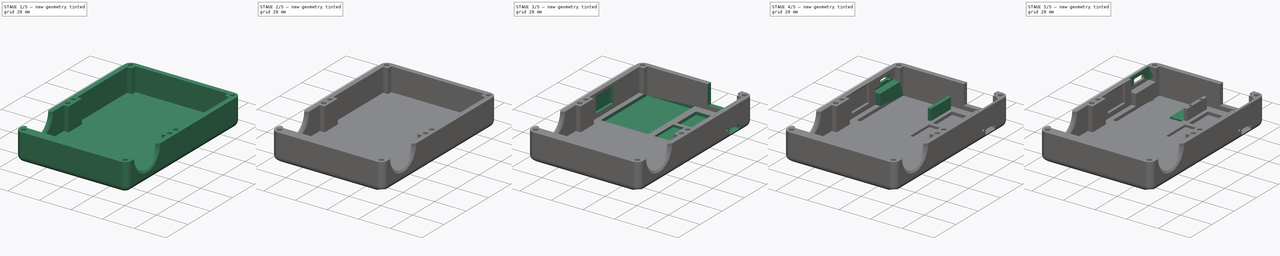
[diagram: build sequence overview — one tinted view per stage of 5, left to right]
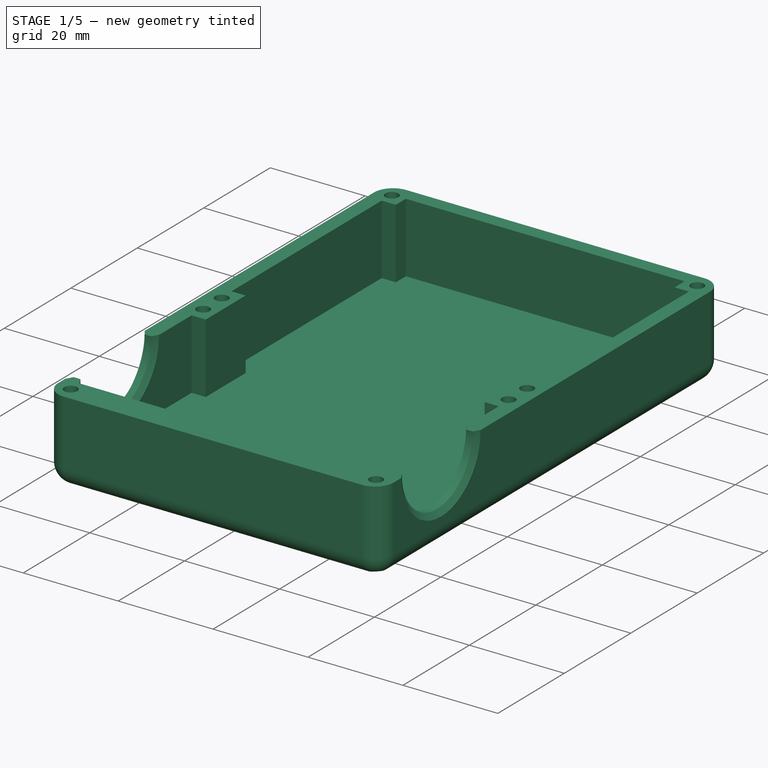
[diagram: stage 1 of 5 — iso view after this stage's code; geometry added in this stage tinted green]
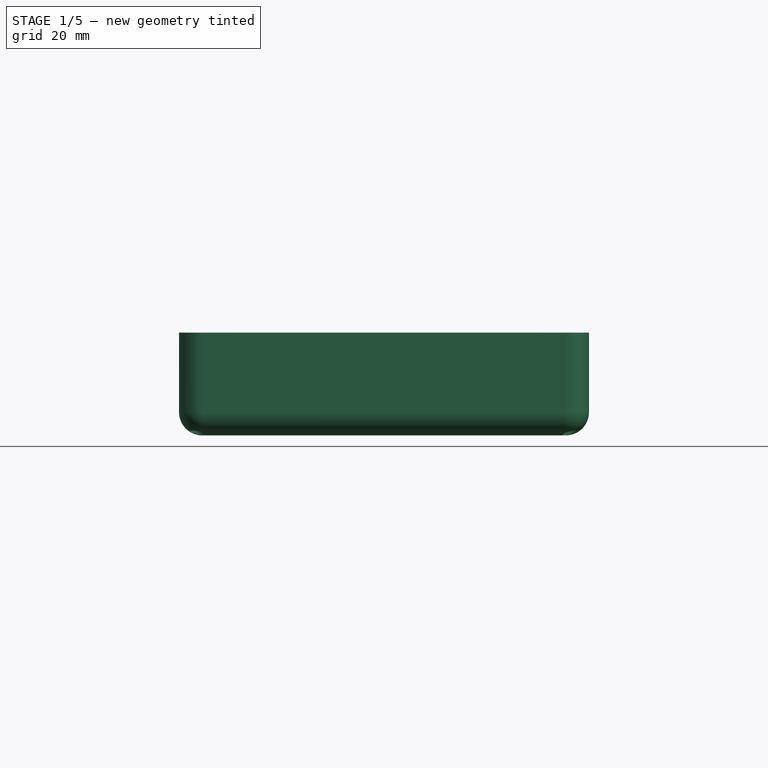
[diagram: stage 1 of 5 — front view after this stage's code; geometry added in this stage tinted green]
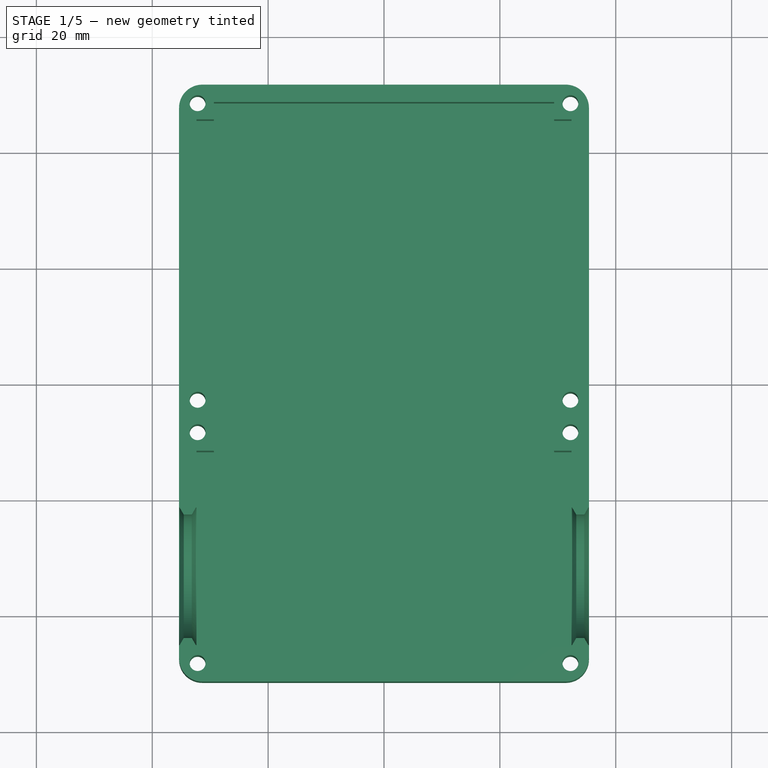
[diagram: stage 1 of 5 — top view after this stage's code; geometry added in this stage tinted green]
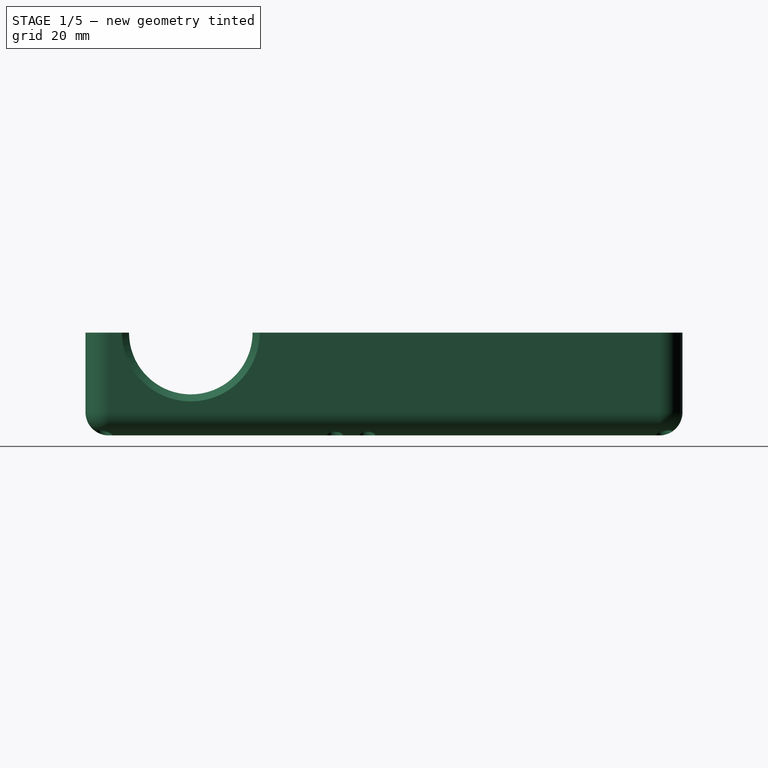
[diagram: stage 1 of 5 — right view after this stage's code; geometry added in this stage tinted green]
FCSTD DOCUMENT  (FreeCAD 1.0R39285 (Git))
Label: X-O2Sensor_Case_New_Back
License: All rights reserved
LicenseURL: https://en.wikipedia.org/wiki/All_rights_reserved
objects: Sketcher::SketchObject×23, PartDesign::Pocket×16, PartDesign::Pad×5, PartDesign::Body×4, Part::FeaturePython×3, PartDesign::Chamfer×3, App::Part×2, PartDesign::FeatureBase×2, Spreadsheet::Sheet×1, PartDesign::Revolution×1, PartDesign::Fillet×1, Part::Extrusion×1, App::DocumentObjectGroup×1
note: 136 computed .brp shape members not serialized (recipe doc carries the construction recipe); baked Part::Feature solids carry a one-line shape summary decoded from their .brp

FEATURE [Spreadsheet::Sheet] Spreadsheet  label="S"
  cells = A2='zero_width; B2(zero_width)=18; A3='zero_length; B3(zero_length)=23.5; A4='zero_usb_width; B4(zero_usb_width)=9; A5='zero_usb_nib; B5(zero_usb_nib)=1; A6='zero_pcb_thickness; B6(zero_pcb_thickness)=1.15; A7='zero_usb_thickness; B7(zero_usb_thickness)=3.25; C7='This is also the thickest top part; A8='zero_bottom_height; B8(zero_bottom_height)=1.25; A9='zero_bottom_chip_width; B9(zero_bottom_chip_width)=7; A10='zero_pad_width; B10(zero_pad_width)=2.5; A16='ads1115_width; B16(ads1115_width)=28; A17='ads1115_length; B17(ads1115_length)=17.2; A18='ads115_pcb_thickness; B18(ads115_pcb_thickness)=1.5; A19='ads115_holes; B19(ads115_holes)=2.4; A22='charger_width; B22(charger_width)=17.3; A23='charger_length; B23(charger_length)=28; A24='charger_usb_width; B24(charger_usb_width)=9; A25='charger_holes; B25(charger_holes)=1.5; A26='charger_pcb_thickness; B26(charger_pcb_thickness)=1.6; A27='charger_usb_height; B27(charger_usb_height)=4.2; A31='oled_width; B31(oled_width)=28.15; C31='https://thepihut.com/products/blue-0-96-oled-display-module-128x94?srsltid=AfmBOoqjCmrL4VVzqR_EE5hcJSdx-CRojF6zMIyrO1bcx0NnoYyN6zFz; A32='oled_length; B32(oled_length)=28.25; A33='oled_holes; B33(oled_holes)=1.95; A34='oled_pcb_thickness; B34(oled_pcb_thickness)=1.25; A35='oled_screen_height; B35(oled_screen_height)=1.75; A36='oled_screen_width; B36(oled_screen_width)=25.35; A37='oled_screen_length; B37(oled_screen_length)=16.85; A38='oled_hole_top_edge; B38(oled_hole_top_edge)=1.25; A39='oled_hole_side_edge; B39(oled_hole_side_edge)=1.25; A40='oled_hole_bottom_edge; B40(oled_hole_bottom_edge)=1.25; A41='oled_screen_bottom; B41(oled_screen_bottom)=3; A43='battery_width; B43(battery_width)=30; A44='battery_length; B44(battery_length)=42; A45='batter_depth; B45(batter_depth)=8.2; A49='switch_width; B49(switch_width)=12.3; A50='switch_length; B50(switch_length)=19.2; A51='switch_depth; B51(switch_depth)=11.1; A52='swith_length; B52(swith_length)=6; A53='switch_button_diameter; B53(switch_button_diameter)=3.5; A54='switch_button_height; B54(switch_button_height)=1.75; A55='switch_top_thingies; B55(switch_top_thingies)=0.6; A59='vr_length; B59(vr_length)=15.5; A60='vr_width; B60(vr_width)=10.25; A61='vr_back_depth; B61(vr_back_depth)=1.3; A62='vr_hole; B62(vr_hole)=3.7; A63='vr_hole_top_edge; B63(vr_hole_top_edge)=1; A65='sensor_minor_body_length; B65(sensor_minor_body_length)=15.8; A66='sensor_diameter; B66(sensor_diameter)=29.5; A67='sensor_length; B67(sensor_length)=41.5; A68='sensor_thread_diameter; B68(sensor_thread_diameter)=16; A69='sensor_thread_pitch; B69(sensor_thread_pitch)=1; A70='sensor_thread_per_inch; B70(sensor_thread_per_inch)=25.4; A71='sensor_thread_length; B71(sensor_thread_length)=7.5; A72='sensor_smaller_body_diameter; B72(sensor_smaller_body_diameter)=26.3; A74='nipple_minor_diameter; B74(nipple_minor_diameter)=12.12; A75='nipple_pitch; B75(nipple_pitch)=1.41; A76='nipple_thread_diameter; B76(nipple_thread_diameter)=13.75; A77='nipple_thread_per_inch; B77(nipple_thread_per_inch)=18; A78='nipple_thread_length; B78(nipple_thread_length)=12.6; A80='dimension_base_height; B80(dimension_base_height)=12; A81='dimension_extender_height; B81(dimension_extender_height)=42; A83='insert_diameter; B83(insert_diameter)=3.3; A85='dimension_wall_thickness; B85(dimension_wall_thickness)=3; A86='dimension_case_width; B86(dimension_case_width)=70.75; A87='dimension_case_length; B87(dimension_case_length)=70; A88='dimension_adapter_wall_thickness; B88(dimension_adapter_wall_thickness)=5; A92='button_diameter; B92(button_diameter)=12.25; A93='dimension_oled_edge; B93(dimension_oled_edge)=33; A97='screw_diameter; B97(screw_diameter)=2.75; A98='screw_head_diameter; B98(screw_head_diameter)=4.55; A102='tollerance; B102(tollerance)=0.2
FEATURE [App::Part] Part  label="CaseBackPart"
  Origin = -> Origin
FEATURE [Sketcher::SketchObject] Sketch
  ArcFitTolerance = 1e-06
  AttachmentSupport = -> [XY_Plane001]
  FullyConstrained = true
  MakeInternals = false
  MapMode = 5
  expr: Constraints[8] = <<S>>.dimension_case_width
  expr: Constraints[9] = <<S>>.dimension_wall_thickness + <<S>>.dimension_case_length + <<S>>.nipple_thread_diameter + <<S>>.dimension_adapter_wall_thickness * 2 + <<S>>.dimension_wall_thickness + <<S>>.insert_diameter
  sketch-geometry (4):
    g0: LineSegment StartX=-35.375 StartY=51.525 StartZ=0 EndX=-35.375 EndY=-51.525 EndZ=0
    g1: LineSegment StartX=-35.375 StartY=-51.525 StartZ=0 EndX=35.375 EndY=-51.525 EndZ=0
    g2: LineSegment StartX=35.375 StartY=-51.525 StartZ=0 EndX=35.375 EndY=51.525 EndZ=0
    g3: LineSegment StartX=35.375 StartY=51.525 StartZ=0 EndX=-35.375 EndY=51.525 EndZ=0
  constraints (11):
    c: Coincident(g0,g1)
    c: Coincident(g1,g2)
    c: Coincident(g2,g3)
    c: Coincident(g3,g0)
    c: Vertical(g0)
    c: Vertical(g2)
    c: Horizontal(g1)
    c: Horizontal(g3)
    c: DistanceX(g3,g3) = 70.75
    c: DistanceY(g0,g0) = 103.05
    c: Symmetric(g2,g0,g-1)
FEATURE [PartDesign::Pad] Pad  label="CaseBackPad"
  Direction = (0,0,1)
  Length = 3
  Length2 = 10
  Profile = -> Sketch
  ReferenceAxis = -> Sketch [N_Axis]
  Refine = true
  Suppressed = false
  Type = 0
  expr: Length = <<S>>.dimension_wall_thickness
FEATURE [Sketcher::SketchObject] Sketch001
  ArcFitTolerance = 1e-06
  AttachmentSupport = -> [Pad]
  FullyConstrained = true
  MakeInternals = false
  MapMode = 5
  Placement = pos=(0,0,3) rot=(0,0,1;0rad)
  expr: Constraints[16] = <<S>>.dimension_wall_thickness * 2
  expr: Constraints[40] = <<S>>.dimension_wall_thickness
  expr: Constraints[41] = <<S>>.dimension_wall_thickness
  expr: Constraints[42] = <<S>>.dimension_wall_thickness
  expr: Constraints[43] = <<S>>.dimension_wall_thickness * 4
  expr: Constraints[52] = <<S>>.dimension_wall_thickness
  expr: Constraints[53] = <<S>>.dimension_wall_thickness
  expr: Constraints[54] = <<S>>.dimension_wall_thickness
  expr: Constraints[55] = <<S>>.dimension_wall_thickness
  expr: Constraints[59] = <<S>>.dimension_wall_thickness
  expr: Constraints[60] = (<<S>>.dimension_wall_thickness + <<S>>.dimension_case_length + <<S>>.nipple_thread_diameter + <<S>>.dimension_adapter_wall_thickness * 2 + <<S>>.dimension_wall_thickness + <<S>>.insert_diameter) / 2 - <<S>>.dimension_wall_thickness - <<S>>.insert_diameter - (<<S>>.nipple_thread_diameter + <<S>>.dimension_adapter_wall_thickness * 2) - <<S>>.sensor_minor_body_length - <<S>>.dimension_wall_thickness * 2
  expr: Constraints[8] = <<S>>.dimension_wall_thickness + <<S>>.dimension_case_length + <<S>>.nipple_thread_diameter + <<S>>.dimension_adapter_wall_thickness * 2 + <<S>>.dimension_wall_thickness + <<S>>.insert_diameter
  expr: Constraints[9] = <<S>>.dimension_case_width
  sketch-geometry (20):
    g0: LineSegment StartX=-35.375 StartY=51.525 StartZ=0 EndX=-35.375 EndY=-51.525 EndZ=0
    g1: LineSegment StartX=-35.375 StartY=-51.525 StartZ=0 EndX=35.375 EndY=-51.525 EndZ=0
    g2: LineSegment StartX=35.375 StartY=-51.525 StartZ=0 EndX=35.375 EndY=51.525 EndZ=0
    g3: LineSegment StartX=35.375 StartY=51.525 StartZ=0 EndX=-35.375 EndY=51.525 EndZ=0
    g4: LineSegment StartX=-32.375 StartY=45.525 StartZ=0 EndX=-32.375 EndY=0.325 EndZ=0
    g5: LineSegment StartX=-32.375 StartY=-45.525 StartZ=0 EndX=32.375 EndY=-45.525 EndZ=0
    g6: LineSegment StartX=32.375 StartY=-45.525 StartZ=0 EndX=32.375 EndY=-11.675 EndZ=0
    g7: LineSegment StartX=-32.375 StartY=0.325 StartZ=0 EndX=-29.375 EndY=0.325 EndZ=0
    g8: LineSegment StartX=-29.375 StartY=0.325 StartZ=0 EndX=-29.375 EndY=-11.675 EndZ=0
    g9: LineSegment StartX=-29.375 StartY=-11.675 StartZ=0 EndX=-32.375 EndY=-11.675 EndZ=0
    g10: LineSegment StartX=32.375 StartY=0.325 StartZ=0 EndX=29.375 EndY=0.325 EndZ=0
    g11: LineSegment StartX=29.375 StartY=0.325 StartZ=0 EndX=29.375 EndY=-11.675 EndZ=0
    g12: LineSegment StartX=29.375 StartY=-11.675 StartZ=0 EndX=32.375 EndY=-11.675 EndZ=0
    g13: LineSegment StartX=29.375 StartY=48.525 StartZ=0 EndX=29.375 EndY=45.525 EndZ=0
    g14: LineSegment StartX=29.375 StartY=45.525 StartZ=0 EndX=32.375 EndY=45.525 EndZ=0
    g15: LineSegment StartX=-29.375 StartY=48.525 StartZ=0 EndX=-29.375 EndY=45.525 EndZ=0
    g16: LineSegment StartX=-29.375 StartY=45.525 StartZ=0 EndX=-32.375 EndY=45.525 EndZ=0
    g17: LineSegment StartX=32.375 StartY=0.325 StartZ=0 EndX=32.375 EndY=45.525 EndZ=0
    g18: LineSegment StartX=-32.375 StartY=-11.675 StartZ=0 EndX=-32.375 EndY=-45.525 EndZ=0
    g19: LineSegment StartX=-29.375 StartY=48.525 StartZ=0 EndX=29.375 EndY=48.525 EndZ=0
  constraints (61):
    c: Coincident(g0,g1)
    c: Coincident(g1,g2)
    c: Coincident(g2,g3)
    c: Coincident(g3,g0)
    c: Vertical(g0)
    c: Vertical(g2)
    c: Horizontal(g1)
    c: Horizontal(g3)
    c: DistanceY(g2,g2) = 103.05
    c: DistanceX(g3,g3) = 70.75
    c: Symmetric(g2,g0,g-1)
    c: Coincident(g18,g5)
    c: Coincident(g5,g6)
    c: Vertical(g4)
    c: Vertical(g6)
    c: Horizontal(g5)
    c: DistanceY(g0,g18) = 6
    c: Horizontal(g7)
    c: Coincident(g7,g8)
    c: Vertical(g8)
    c: Coincident(g8,g9)
    c: PointOnObject(g9,g18)
    c: Horizontal(g9)
    c: PointOnObject(g10,g17)
    c: Horizontal(g10)
    c: Coincident(g10,g11)
    c: Vertical(g11)
    c: Coincident(g11,g12)
    c: Horizontal(g12)
    c: Vertical(g13)
    c: Coincident(g13,g14)
    c: Horizontal(g14)
    c: Vertical(g15)
    c: Coincident(g15,g16)
    c: Horizontal(g16)
    c: DistanceX(g7,g15) = 0
    c: DistanceX(g10,g13) = 0
    c: DistanceY(g13,g15) = 0
    c: DistanceY(g10,g7) = 0
    c: DistanceY(g11,g8) = 0
    c: DistanceX(g7,g7) = 3
    c: DistanceX(g10,g10) = 3
    c: DistanceY(g15,g15) = 3
    c: DistanceY(g8,g8) = 12
    c: Coincident(g4,g16)
    c: Coincident(g17,g14)
    c: Coincident(g6,g12)
    c: PointOnObject(g17,g10)
    c: Coincident(g4,g7)
    c: PointOnObject(g18,g9)
    c: DistanceX(g4,g9) = 0
    c: DistanceX(g10,g6) = 0
    c: DistanceX(g0,g5) = 3
    c: DistanceX(g5,g1) = 3
    c: DistanceX(g0,g4) = 3
    c: DistanceX(g14,g2) = 3
    c: Coincident(g19,g15)
    c: Coincident(g19,g13)
    c: Horizontal(g19)
    c: DistanceY(g15,g0) = 3
    c: DistanceY(g7,g-1) = -0.325
FEATURE [PartDesign::Pad] Pad001  label="WallsPad"
  BaseFeature = -> Pad
  Direction = (0,0,1)
  Length = 14.75
  Length2 = 10
  Profile = -> Sketch001
  ReferenceAxis = -> Sketch001 [N_Axis]
  Refine = true
  Suppressed = false
  Type = 0
  expr: Length = <<S>>.sensor_diameter / 2
FEATURE [Sketcher::SketchObject] Sketch002
  ArcFitTolerance = 1e-06
  AttachmentSupport = -> [Pad001]
  FullyConstrained = true
  MakeInternals = false
  MapMode = 5
  Placement = pos=(-35.375,0,0) rot=(0.57735,-0.57735,-0.57735;2.0944rad)
  expr: Constraints[0] = <<S>>.sensor_diameter / 2 + <<S>>.dimension_wall_thickness
  expr: Constraints[1] = <<S>>.nipple_thread_diameter + <<S>>.dimension_adapter_wall_thickness * 2
  expr: Constraints[2] = (<<S>>.dimension_wall_thickness + <<S>>.dimension_case_length + <<S>>.nipple_thread_diameter + <<S>>.dimension_adapter_wall_thickness * 2 + <<S>>.dimension_wall_thickness + 3.3) / 2 - <<S>>.dimension_wall_thickness - 3.3 - (<<S>>.nipple_thread_diameter + <<S>>.dimension_adapter_wall_thickness * 2) / 2
  sketch-geometry (1):
    g0: Circle CenterX=33.35 CenterY=17.75 CenterZ=0 NormalX=0 NormalY=0 NormalZ=1 AngleXU=0 Radius=11.875
  constraints (3):
    c: DistanceY(g-1,g0) = 17.75
    c: Diameter(g0) = 23.75
    c: DistanceX(g-1,g0) = 33.35
FEATURE [PartDesign::Pocket] Pocket  label="InsertPocket"
  BaseFeature = -> Pad001
  Direction = (1,0,0)
  Length = 5
  Length2 = 5
  Profile = -> Sketch002
  ReferenceAxis = -> Sketch002 [N_Axis]
  Refine = true
  Suppressed = false
  Type = 1
FEATURE [Sketcher::SketchObject] Sketch003
  ArcFitTolerance = 1e-06
  AttachmentSupport = -> [Pocket]
  FullyConstrained = true
  MakeInternals = false
  MapMode = 5
  Placement = pos=(0,0,17.75) rot=(0,0,1;0rad)
  expr: Constraints[38] = <<S>>.dimension_case_width - 0.2
  expr: Constraints[39] = (<<S>>.dimension_case_width - 0.2) / 2
  expr: Constraints[40] = (<<S>>.dimension_wall_thickness + <<S>>.dimension_case_length + <<S>>.nipple_thread_diameter + <<S>>.dimension_adapter_wall_thickness * 2 + <<S>>.dimension_wall_thickness + 3.3) / 2 - <<S>>.insert_diameter - <<S>>.dimension_wall_thickness
  sketch-geometry (14):
    g0: LineSegment StartX=-33.175 StartY=-44.0126 StartZ=0 EndX=-34.575 EndY=-44.0126 EndZ=0
    g1: LineSegment StartX=-34.575 StartY=-44.0126 StartZ=0 EndX=-35.275 EndY=-45.225 EndZ=0
    g2: LineSegment StartX=-35.275 StartY=-45.225 StartZ=0 EndX=-34.575 EndY=-46.4374 EndZ=0
    g3: LineSegment StartX=-34.575 StartY=-46.4374 StartZ=0 EndX=-33.175 EndY=-46.4374 EndZ=0
    g4: LineSegment StartX=-33.175 StartY=-46.4374 StartZ=0 EndX=-32.475 EndY=-45.225 EndZ=0
    g5: LineSegment StartX=-32.475 StartY=-45.225 StartZ=0 EndX=-33.175 EndY=-44.0126 EndZ=0
    g6: Circle [constr] CenterX=-33.875 CenterY=-45.225 CenterZ=0 NormalX=0 NormalY=0 NormalZ=1 AngleXU=0 Radius=1.4
    g7: LineSegment StartX=34.575 StartY=-44.0126 StartZ=0 EndX=33.175 EndY=-44.0126 EndZ=0
    g8: LineSegment StartX=33.175 StartY=-44.0126 StartZ=0 EndX=32.475 EndY=-45.225 EndZ=0
    g9: LineSegment StartX=32.475 StartY=-45.225 StartZ=0 EndX=33.175 EndY=-46.4374 EndZ=0
    g10: LineSegment StartX=33.175 StartY=-46.4374 StartZ=0 EndX=34.575 EndY=-46.4374 EndZ=0
    g11: LineSegment StartX=34.575 StartY=-46.4374 StartZ=0 EndX=35.275 EndY=-45.225 EndZ=0
    g12: LineSegment StartX=35.275 StartY=-45.225 StartZ=0 EndX=34.575 EndY=-44.0126 EndZ=0
    g13: Circle [constr] CenterX=33.875 CenterY=-45.225 CenterZ=0 NormalX=0 NormalY=0 NormalZ=1 AngleXU=0 Radius=1.4
  constraints (34):
    c: Coincident(g0,g1)
    c: Coincident(g1,g2)
    c: Coincident(g2,g3)
    c: Coincident(g3,g4)
    c: Coincident(g4,g5)
    c: Coincident(g5,g0)
    c: Equal(g0, g1-g5) x5
    c: PointOnObject(g0,g6)
    c: PointOnObject(g1,g6)
    c: PointOnObject(g2,g6)
    c: PointOnObject(g3,g6)
    c: PointOnObject(g4,g6)
    c: PointOnObject(g5,g6)
    c: Radius(g6) = 1.4
    c: Coincident(g7,g8)
    c: Coincident(g8,g9)
    c: Coincident(g9,g10)
    c: Coincident(g10,g11)
    c: Coincident(g11,g12)
    c: Coincident(g12,g7)
    c: Equal(g7, g8-g12) x5
    c: PointOnObject(g7,g13)
    c: PointOnObject(g8,g13)
    c: PointOnObject(g9,g13)
    c: PointOnObject(g10,g13)
    c: PointOnObject(g11,g13)
    c: PointOnObject(g12,g13)
    c: Radius(g13) = 1.4
    c: DistanceY(g0,g0) = 0
    c: DistanceY(g7,g7) = 0
    c: DistanceX(g1,g11) = 70.55
    c: DistanceX(g1,g-1) = 35.275
    c: DistanceY(g6,g-1) = 45.225
    c: DistanceY(g6,g13) = 0
FEATURE [PartDesign::Revolution] Revolution  label="InsertRevolution"
  Angle = 180
  Angle2 = 60
  Axis = (-1,0,0)
  Base = (-35.375,-33.35,17.75)
  BaseFeature = -> Pocket
  Profile = -> Sketch003
  ReferenceAxis = -> Pocket [Edge7]
  Refine = true
  Reversed = true
  Suppressed = false
  Type = 0
FEATURE [Sketcher::SketchObject] Sketch004
  ArcFitTolerance = 1e-06
  AttachmentSupport = -> [Revolution]
  FullyConstrained = true
  MakeInternals = false
  MapMode = 5
  Placement = pos=(0,0,17.75) rot=(0,0,1;0rad)
  expr: Constraints[18] = <<S>>.dimension_case_width / 2 - <<S>>.dimension_wall_thickness - <<S>>.tollerance
  expr: Constraints[19] = <<S>>.dimension_case_width / 2 - <<S>>.dimension_wall_thickness - <<S>>.tollerance
  expr: Constraints[20] = (<<S>>.dimension_wall_thickness + <<S>>.dimension_case_length + <<S>>.nipple_thread_diameter + <<S>>.dimension_adapter_wall_thickness * 2 + <<S>>.dimension_wall_thickness + <<S>>.insert_diameter) / 2 - <<S>>.dimension_wall_thickness - <<S>>.tollerance
  expr: Constraints[21] = (<<S>>.dimension_wall_thickness + <<S>>.dimension_case_length + <<S>>.nipple_thread_diameter + <<S>>.dimension_adapter_wall_thickness * 2 + <<S>>.dimension_wall_thickness + <<S>>.insert_diameter) / 2 - <<S>>.dimension_wall_thickness - <<S>>.tollerance
  expr: Constraints[22] = (<<S>>.dimension_wall_thickness + <<S>>.dimension_case_length + <<S>>.nipple_thread_diameter + <<S>>.dimension_adapter_wall_thickness * 2 + <<S>>.dimension_wall_thickness + <<S>>.insert_diameter) / 2 - <<S>>.dimension_wall_thickness - <<S>>.insert_diameter - (<<S>>.nipple_thread_diameter + <<S>>.dimension_adapter_wall_thickness * 2) - <<S>>.sensor_minor_body_length - <<S>>.dimension_wall_thickness + <<S>>.tollerance
  expr: Constraints[23] = (<<S>>.dimension_wall_thickness + <<S>>.dimension_case_length + <<S>>.nipple_thread_diameter + <<S>>.dimension_adapter_wall_thickness * 2 + <<S>>.dimension_wall_thickness + <<S>>.insert_diameter) / 2 - <<S>>.dimension_wall_thickness - <<S>>.insert_diameter - (<<S>>.nipple_thread_diameter + <<S>>.dimension_adapter_wall_thickness * 2) - <<S>>.sensor_minor_body_length + <<S>>.dimension_wall_thickness - <<S>>.tollerance
  expr: Constraints[7] = <<S>>.screw_diameter
  sketch-geometry (8):
    g0: Circle CenterX=-32.175 CenterY=-48.325 CenterZ=0 NormalX=0 NormalY=0 NormalZ=1 AngleXU=0 Radius=1.375
    g1: Circle CenterX=32.175 CenterY=-48.325 CenterZ=0 NormalX=0 NormalY=0 NormalZ=1 AngleXU=0 Radius=1.375
    g2: Circle CenterX=-32.175 CenterY=-8.475 CenterZ=0 NormalX=0 NormalY=0 NormalZ=1 AngleXU=0 Radius=1.375
    g3: Circle CenterX=32.175 CenterY=-8.475 CenterZ=0 NormalX=0 NormalY=0 NormalZ=1 AngleXU=0 Radius=1.375
    g4: Circle CenterX=-32.175 CenterY=-2.875 CenterZ=0 NormalX=0 NormalY=0 NormalZ=1 AngleXU=0 Radius=1.375
    g5: Circle CenterX=32.175 CenterY=-2.875 CenterZ=0 NormalX=0 NormalY=0 NormalZ=1 AngleXU=0 Radius=1.375
    g6: Circle CenterX=-32.175 CenterY=48.325 CenterZ=0 NormalX=0 NormalY=0 NormalZ=1 AngleXU=0 Radius=1.375
    g7: Circle CenterX=32.175 CenterY=48.325 CenterZ=0 NormalX=0 NormalY=0 NormalZ=1 AngleXU=0 Radius=1.375
  constraints (18):
    c: Equal(g0, g1-g7) x7
    c: Diameter(g0) = 2.75
    c: DistanceX(g4,g6) = 0
    c: DistanceX(g4,g2) = 0
    c: DistanceX(g2,g0) = 0
    c: DistanceX(g1,g3) = 0
    c: DistanceX(g5,g3) = 0
    c: DistanceX(g7,g5) = 0
    c: DistanceY(g6,g7) = 0
    c: DistanceY(g5,g4) = 0
    c: DistanceY(g2,g3) = 0
    c: DistanceY(g0,g1) = 0
    c: DistanceX(g4,g-1) = 32.175
    c: DistanceX(g-1,g5) = 32.175
    c: DistanceY(g0,g-1) = 48.325
    c: DistanceY(g-1,g6) = 48.325
    c: DistanceY(g4,g-1) = 2.875
    c: DistanceY(g2,g-1) = 8.475
FEATURE [PartDesign::Fillet] Fillet  label="SoftEdgeFillet"
  Base = -> Revolution [Edge33,Edge30,Edge31,Edge21,Edge28,Edge20,Edge17,Edge27]
  BaseFeature = -> Revolution
  Radius = 4
  Refine = true
  SupportTransform = false
  Suppressed = false
  UseAllEdges = false
FEATURE [PartDesign::Pocket] Pocket001  label="ScrewPockets"
  BaseFeature = -> Fillet
  Direction = (0,0,-1)
  Length = 5
  Length2 = 5
  Profile = -> Sketch004
  ReferenceAxis = -> Sketch004 [N_Axis]
  Refine = true
  Suppressed = false
  Type = 1
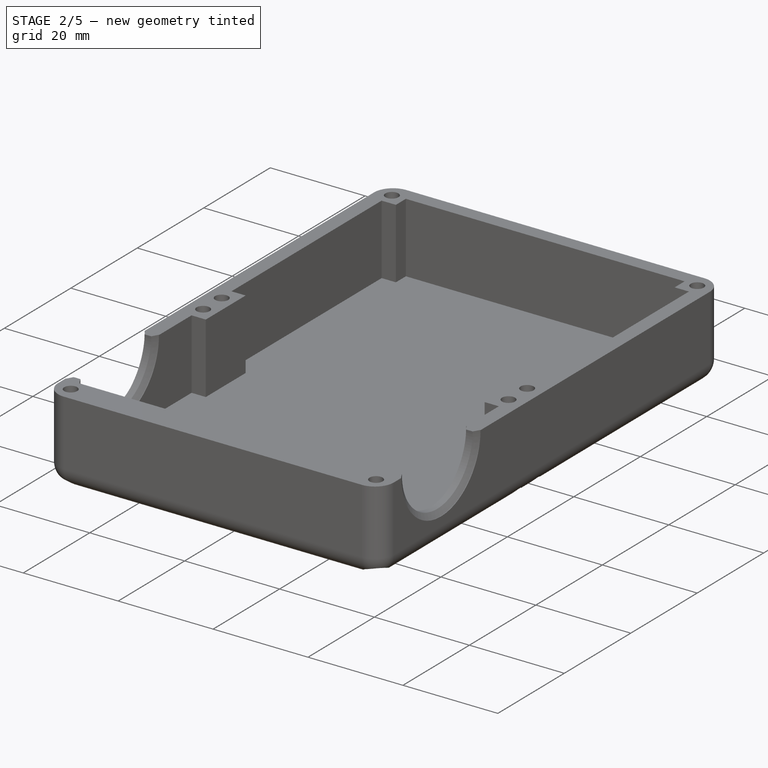
[diagram: stage 2 of 5 — iso view after this stage's code; geometry added in this stage tinted green]
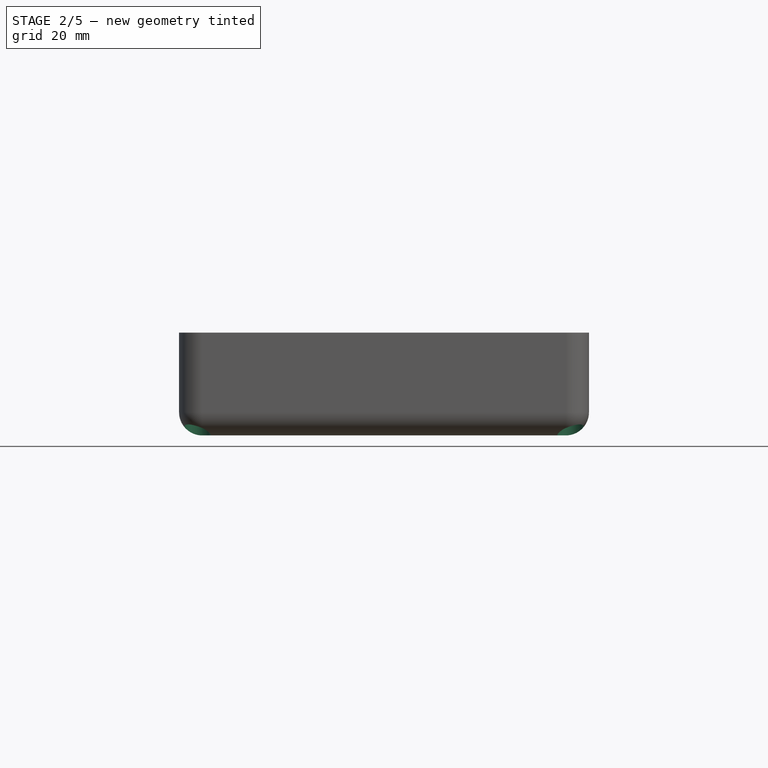
[diagram: stage 2 of 5 — front view after this stage's code; geometry added in this stage tinted green]
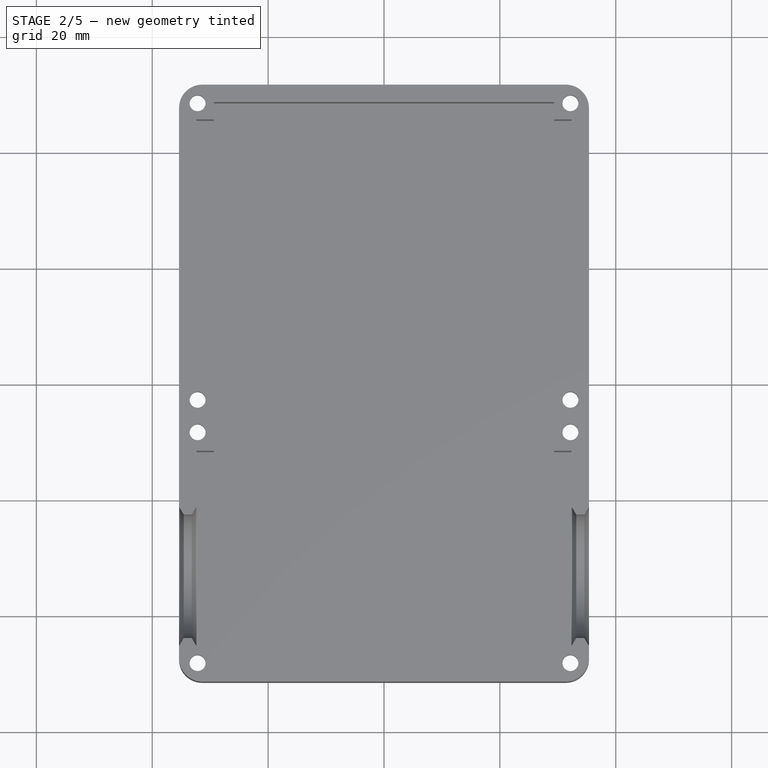
[diagram: stage 2 of 5 — top view after this stage's code; geometry added in this stage tinted green]
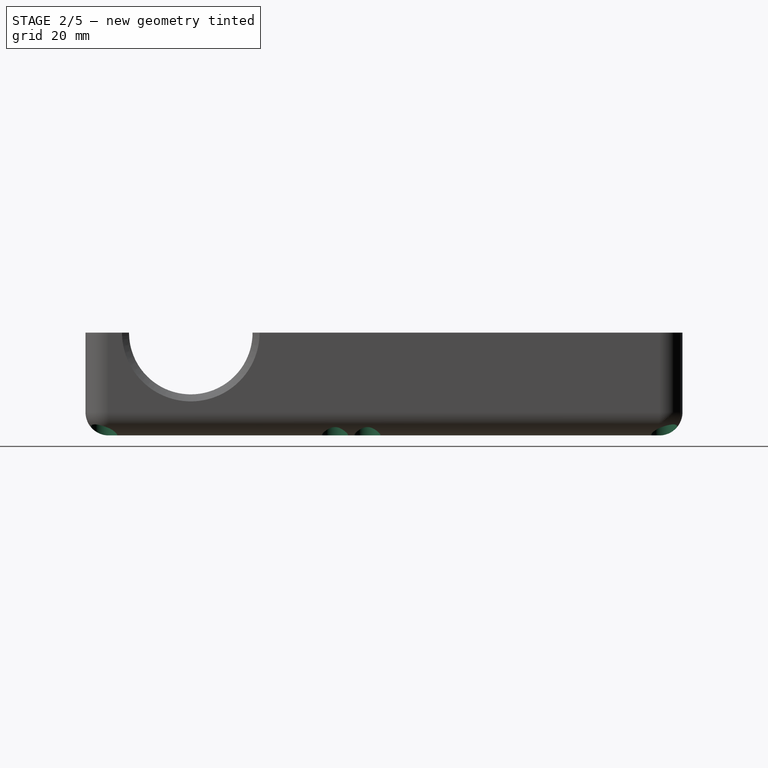
[diagram: stage 2 of 5 — right view after this stage's code; geometry added in this stage tinted green]
FEATURE [Sketcher::SketchObject] Sketch005
  ArcFitTolerance = 1e-06
  AttachmentSupport = -> [Pocket001]
  FullyConstrained = true
  MakeInternals = false
  MapMode = 5
  Placement = pos=(0,0,0) rot=(1,0,0;3.14159rad)
  expr: Constraints[18] = <<S>>.dimension_case_width / 2 - <<S>>.dimension_wall_thickness - <<S>>.tollerance
  expr: Constraints[19] = <<S>>.dimension_case_width / 2 - <<S>>.dimension_wall_thickness - <<S>>.tollerance
  expr: Constraints[20] = (<<S>>.dimension_wall_thickness + <<S>>.dimension_case_length + <<S>>.nipple_thread_diameter + <<S>>.dimension_adapter_wall_thickness * 2 + <<S>>.dimension_wall_thickness + <<S>>.insert_diameter) / 2 - <<S>>.dimension_wall_thickness - <<S>>.tollerance
  expr: Constraints[21] = (<<S>>.dimension_wall_thickness + <<S>>.dimension_case_length + <<S>>.nipple_thread_diameter + <<S>>.dimension_adapter_wall_thickness * 2 + <<S>>.dimension_wall_thickness + <<S>>.insert_diameter) / 2 - <<S>>.dimension_wall_thickness - <<S>>.tollerance
  expr: Constraints[22] = (<<S>>.dimension_wall_thickness + <<S>>.dimension_case_length + <<S>>.nipple_thread_diameter + <<S>>.dimension_adapter_wall_thickness * 2 + <<S>>.dimension_wall_thickness + <<S>>.insert_diameter) / 2 - <<S>>.dimension_wall_thickness - <<S>>.insert_diameter - (<<S>>.nipple_thread_diameter + <<S>>.dimension_adapter_wall_thickness * 2) - <<S>>.sensor_minor_body_length - <<S>>.dimension_wall_thickness + <<S>>.dimension_wall_thickness * 2 - <<S>>.tollerance
  expr: Constraints[23] = (<<S>>.dimension_wall_thickness + <<S>>.dimension_case_length + <<S>>.nipple_thread_diameter + <<S>>.dimension_adapter_wall_thickness * 2 + <<S>>.dimension_wall_thickness + <<S>>.insert_diameter) / 2 - <<S>>.dimension_wall_thickness - <<S>>.insert_diameter - (<<S>>.nipple_thread_diameter + <<S>>.dimension_adapter_wall_thickness * 2) - <<S>>.sensor_minor_body_length - <<S>>.dimension_wall_thickness + <<S>>.tollerance
  expr: Constraints[7] = <<S>>.screw_head_diameter
  sketch-geometry (8):
    g0: Circle CenterX=-32.175 CenterY=-48.325 CenterZ=0 NormalX=0 NormalY=0 NormalZ=1 AngleXU=0 Radius=2.275
    g1: Circle CenterX=32.175 CenterY=-48.325 CenterZ=0 NormalX=0 NormalY=0 NormalZ=1 AngleXU=0 Radius=2.275
    g2: Circle CenterX=-32.175 CenterY=2.875 CenterZ=0 NormalX=0 NormalY=0 NormalZ=1 AngleXU=0 Radius=2.275
    g3: Circle CenterX=32.175 CenterY=2.875 CenterZ=0 NormalX=0 NormalY=0 NormalZ=1 AngleXU=0 Radius=2.275
    g4: Circle CenterX=-32.175 CenterY=8.475 CenterZ=0 NormalX=0 NormalY=0 NormalZ=1 AngleXU=0 Radius=2.275
    g5: Circle CenterX=32.175 CenterY=8.475 CenterZ=0 NormalX=0 NormalY=0 NormalZ=1 AngleXU=0 Radius=2.275
    g6: Circle CenterX=-32.175 CenterY=48.325 CenterZ=0 NormalX=0 NormalY=0 NormalZ=1 AngleXU=0 Radius=2.275
    g7: Circle CenterX=32.175 CenterY=48.325 CenterZ=0 NormalX=0 NormalY=0 NormalZ=1 AngleXU=0 Radius=2.275
  constraints (18):
    c: Equal(g0, g1-g7) x7
    c: Diameter(g0) = 4.55
    c: DistanceX(g4,g6) = 0
    c: DistanceX(g4,g2) = 0
    c: DistanceX(g2,g0) = 0
    c: DistanceX(g1,g3) = 0
    c: DistanceX(g5,g3) = 0
    c: DistanceX(g7,g5) = 0
    c: DistanceY(g6,g7) = 0
    c: DistanceY(g5,g4) = 0
    c: DistanceY(g2,g3) = 0
    c: DistanceY(g0,g1) = 0
    c: DistanceX(g4,g-1) = 32.175
    c: DistanceX(g-1,g5) = 32.175
    c: DistanceY(g0,g-1) = 48.325
    c: DistanceY(g-1,g6) = 48.325
    c: DistanceY(g-1,g4) = 8.475
    c: DistanceY(g-1,g2) = 2.875
FEATURE [PartDesign::Pocket] Pocket002  label="ScrewHeadPockets"
  BaseFeature = -> Pocket001
  Direction = (0,0,1)
  Length = 12.75
  Length2 = 5
  Profile = -> Sketch005
  ReferenceAxis = -> Sketch005 [N_Axis]
  Refine = true
  Suppressed = false
  Type = 0
  expr: Length = <<S>>.dimension_wall_thickness + <<S>>.sensor_diameter / 2 - 5
FEATURE [PartDesign::Body] Body  label="CaseBackBody"
  AllowCompound = false
  Group = -> [Sketch,Pad,Sketch001,Pad001,Sketch002,Pocket,Sketch003,Revolution,Sketch004,Fillet,Pocket001,Sketch005,Pocket002]
  Origin = -> Origin001
  Tip = -> Pocket002
FEATURE [Sketcher::SketchObject] Sketch006
  ArcFitTolerance = 1e-06
  AttachmentSupport = -> [Pocket002]
  FullyConstrained = true
  MakeInternals = false
  MapMode = 5
  Placement = pos=(0,0,17.75) rot=(0,0,1;0rad)
  expr: Constraints[1] = <<S>>.dimension_case_width
  expr: Constraints[2] = <<S>>.dimension_case_width / 2
  expr: Constraints[3] = (<<S>>.dimension_wall_thickness + <<S>>.dimension_case_length + <<S>>.nipple_thread_diameter + <<S>>.dimension_adapter_wall_thickness * 2 + <<S>>.dimension_wall_thickness + <<S>>.insert_diameter) / 2 - <<S>>.dimension_wall_thickness - <<S>>.insert_diameter - (<<S>>.nipple_thread_diameter + <<S>>.dimension_adapter_wall_thickness * 2) - <<S>>.sensor_minor_body_length
  sketch-geometry (1):
    g0: LineSegment StartX=-35.375 StartY=-5.675 StartZ=0 EndX=35.375 EndY=-5.675 EndZ=0
  constraints (4):
    c: Horizontal(g0)
    c: DistanceX(g0,g0) = 70.75
    c: DistanceX(g-1,g0) = 35.375
    c: DistanceY(g0,g-1) = 5.675
FEATURE [Part::Extrusion] Extrude
  Base = -> Sketch006
  Dir = (0,0,1)
  DirMode = 2
  FaceMakerClass = Part::FaceMakerBullseye
  FaceMakerMode = 3
  LengthFwd = 17.75
  LengthRev = 0
  Reversed = true
  Solid = false
  Symmetric = false
  expr: LengthFwd = <<S>>.dimension_wall_thickness + <<S>>.sensor_diameter / 2
FEATURE [Part::FeaturePython] Slice  # WARN: FeaturePython — macro-defined, semantics opaque (R4)
  Base = -> Body
  Mode = 1
  Tolerance = 0
  Tools = -> [Extrude]
FEATURE [Part::FeaturePython] Slice_child0  label="Slice.0"  # WARN: FeaturePython — macro-defined, semantics opaque (R4)
  Base = -> Slice
  FilterType = 1
  Invert = false
  OverrideMaxVal = 0
  WindowFrom = 80
  WindowTo = 100
  items = 0
FEATURE [Part::FeaturePython] Slice_child1  label="Slice.1"  # WARN: FeaturePython — macro-defined, semantics opaque (R4)
  Base = -> Slice
  FilterType = 1
  Invert = false
  OverrideMaxVal = 0
  WindowFrom = 80
  WindowTo = 100
  items = 1
FEATURE [PartDesign::Body] Body002  label="XHolderBody"
  AllowCompound = false
  Group = -> [Sketch020,Pad004,Sketch021,Pocket014,Sketch022,Pocket015]
  Origin = -> Origin004
  Tip = -> Pocket015
FEATURE [PartDesign::FeatureBase] BaseFeature001
  BaseFeature = -> Slice_child0
  Suppressed = false
FEATURE [PartDesign::Body] Body001  label="CaseBackUpper"
  AllowCompound = false
  BaseFeature = -> Slice_child1
  Group = -> [BaseFeature,Sketch007,Pocket003,Sketch008,Pocket004,Sketch009,Pocket005,Sketch010,Pocket006,Sketch011,Pocket007,Sketch012,Pocket008,Sketch013,Pad002,Sketch014,Pad003,Sketch015,Pocket009,Sketch016,Pocket010,Chamfer,Sketch017,Pocket011,Sketch018,Pocket012,Sketch019,Pocket013,Chamfer001]
  Origin = -> Origin002
  Tip = -> Chamfer001
FEATURE [PartDesign::Chamfer] Chamfer002  label="ScrewInnerChamfer001"
  Angle = 45
  Base = -> BaseFeature001 [Edge85,Edge90,Edge83,Edge124]
  BaseFeature = -> BaseFeature001
  ChamferType = 0
  FlipDirection = false
  Refine = true
  Size = 0.79
  Size2 = 1
  SupportTransform = false
  Suppressed = false
  UseAllEdges = false
FEATURE [PartDesign::Body] Body003  label="LowerBody"
  AllowCompound = false
  BaseFeature = -> Slice_child0
  Group = -> [BaseFeature001,Chamfer002]
  Origin = -> Origin005
  Tip = -> Chamfer002
FEATURE [App::Part] Part001  label="XHolder"
  Group = -> [Body002,Body,Slice_child1,Slice_child0,Slice,Sketch006,Extrude,Body003]
  Origin = -> Origin003
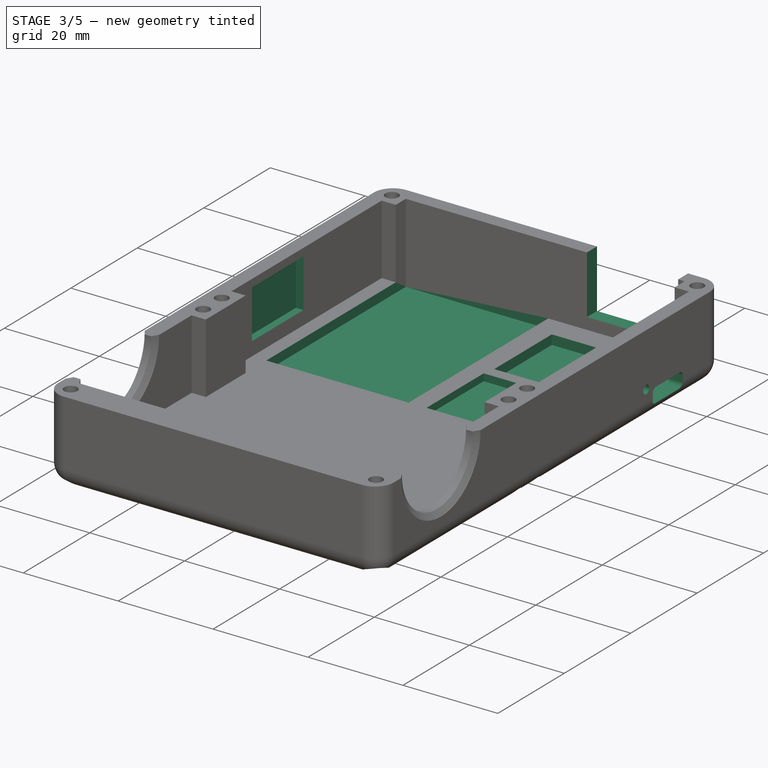
[diagram: stage 3 of 5 — iso view after this stage's code; geometry added in this stage tinted green]
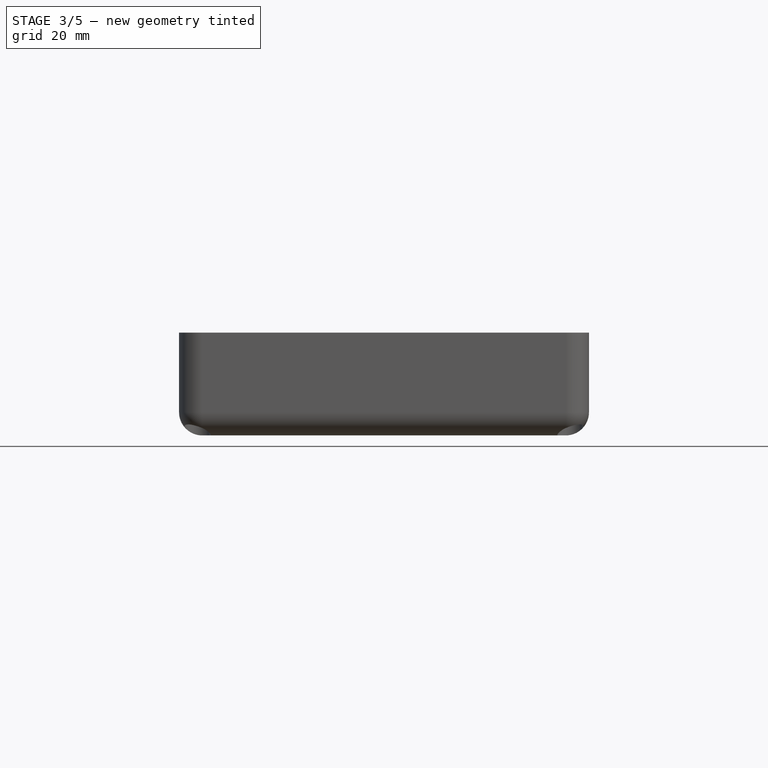
[diagram: stage 3 of 5 — front view after this stage's code; geometry added in this stage tinted green]
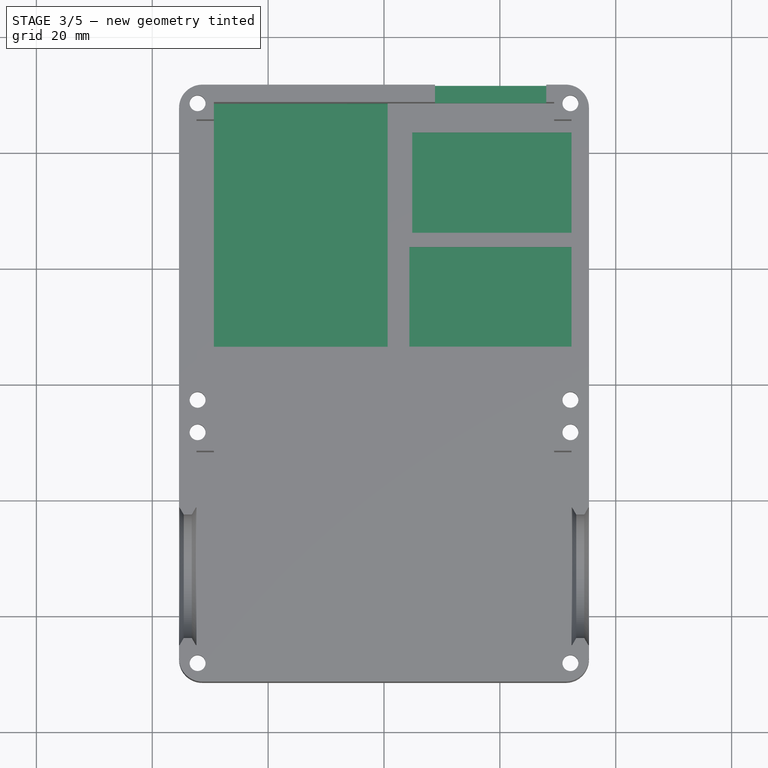
[diagram: stage 3 of 5 — top view after this stage's code; geometry added in this stage tinted green]
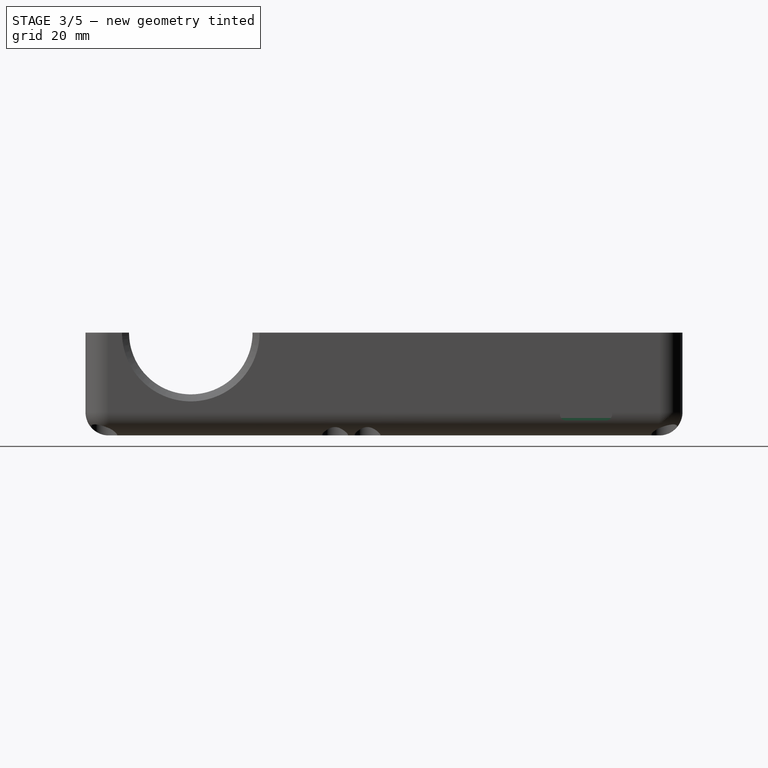
[diagram: stage 3 of 5 — right view after this stage's code; geometry added in this stage tinted green]
FEATURE [App::DocumentObjectGroup] GrExplode_Slice  label="Exploded Slice"
  Group = -> [Slice_child0,Slice_child1]
FEATURE [PartDesign::FeatureBase] BaseFeature
  BaseFeature = -> Slice_child1
  Suppressed = false
FEATURE [Sketcher::SketchObject] Sketch007
  ArcFitTolerance = 1e-06
  AttachmentSupport = -> [BaseFeature]
  FullyConstrained = true
  MakeInternals = false
  MapMode = 5
  Placement = pos=(0,0,3) rot=(0,0,1;0rad)
  expr: Constraints[10] = <<S>>.dimension_case_width / 2 - <<S>>.dimension_wall_thickness * 2
  expr: Constraints[11] = (<<S>>.dimension_wall_thickness + <<S>>.dimension_case_length + <<S>>.nipple_thread_diameter + <<S>>.dimension_adapter_wall_thickness * 2 + <<S>>.dimension_wall_thickness + <<S>>.insert_diameter) / 2 - <<S>>.dimension_wall_thickness
  expr: Constraints[8] = <<S>>.battery_width
  expr: Constraints[9] = <<S>>.battery_length
  sketch-geometry (4):
    g0: LineSegment StartX=-29.375 StartY=48.525 StartZ=0 EndX=-29.375 EndY=6.525 EndZ=0
    g1: LineSegment StartX=-29.375 StartY=6.525 StartZ=0 EndX=0.625 EndY=6.525 EndZ=0
    g2: LineSegment StartX=0.625 StartY=6.525 StartZ=0 EndX=0.625 EndY=48.525 EndZ=0
    g3: LineSegment StartX=0.625 StartY=48.525 StartZ=0 EndX=-29.375 EndY=48.525 EndZ=0
  constraints (12):
    c: Coincident(g0,g1)
    c: Coincident(g1,g2)
    c: Coincident(g2,g3)
    c: Coincident(g3,g0)
    c: Vertical(g0)
    c: Vertical(g2)
    c: Horizontal(g1)
    c: Horizontal(g3)
    c: DistanceX(g3,g3) = 30
    c: DistanceY(g2,g2) = 42
    c: DistanceX(g0,g-1) = 29.375
    c: DistanceY(g-1,g0) = 48.525
FEATURE [PartDesign::Pocket] Pocket003  label="BatteryPocket"
  BaseFeature = -> BaseFeature
  Direction = (0,0,-1)
  Length = 2
  Length2 = 5
  Profile = -> Sketch007
  ReferenceAxis = -> Sketch007 [N_Axis]
  Refine = true
  Suppressed = false
  Type = 0
FEATURE [Sketcher::SketchObject] Sketch008
  ArcFitTolerance = 1e-06
  AttachmentSupport = -> [Pocket003]
  FullyConstrained = true
  MakeInternals = false
  MapMode = 5
  Placement = pos=(0,0,3) rot=(0,0,1;0rad)
  expr: Constraints[10] = <<S>>.dimension_case_width / 2 - <<S>>.dimension_wall_thickness / 2
  expr: Constraints[11] = (<<S>>.dimension_wall_thickness + <<S>>.dimension_case_length + <<S>>.nipple_thread_diameter + <<S>>.dimension_adapter_wall_thickness * 2 + <<S>>.dimension_wall_thickness + <<S>>.insert_diameter) / 2 - <<S>>.dimension_wall_thickness * 2 - 2
  expr: Constraints[8] = <<S>>.charger_length + 1
  expr: Constraints[9] = <<S>>.charger_width
  sketch-geometry (4):
    g0: LineSegment StartX=4.875 StartY=43.525 StartZ=0 EndX=4.875 EndY=26.225 EndZ=0
    g1: LineSegment StartX=4.875 StartY=26.225 StartZ=0 EndX=33.875 EndY=26.225 EndZ=0
    g2: LineSegment StartX=33.875 StartY=26.225 StartZ=0 EndX=33.875 EndY=43.525 EndZ=0
    g3: LineSegment StartX=33.875 StartY=43.525 StartZ=0 EndX=4.875 EndY=43.525 EndZ=0
  constraints (12):
    c: Coincident(g0,g1)
    c: Coincident(g1,g2)
    c: Coincident(g2,g3)
    c: Coincident(g3,g0)
    c: Vertical(g0)
    c: Vertical(g2)
    c: Horizontal(g1)
    c: Horizontal(g3)
    c: DistanceX(g3,g3) = 29
    c: DistanceY(g0,g0) = 17.3
    c: DistanceX(g-1,g2) = 33.875
    c: DistanceY(g-1,g0) = 43.525
FEATURE [PartDesign::Pocket] Pocket004  label="ChargerPocket"
  BaseFeature = -> Pocket003
  Direction = (0,0,-1)
  Length = 2
  Length2 = 5
  Profile = -> Sketch008
  ReferenceAxis = -> Sketch008 [N_Axis]
  Refine = true
  Suppressed = false
  Type = 0
FEATURE [Sketcher::SketchObject] Sketch009
  ArcFitTolerance = 1e-06
  AttachmentSupport = -> [Pocket004]
  FullyConstrained = true
  MakeInternals = false
  MapMode = 5
  Placement = pos=(32.375,5.905e-13,0) rot=(0.57735,-0.57735,-0.57735;2.0944rad)
  expr: Constraints[5] = <<S>>.charger_usb_width
  expr: Constraints[6] = (<<S>>.dimension_wall_thickness + <<S>>.dimension_case_length + <<S>>.nipple_thread_diameter + <<S>>.dimension_adapter_wall_thickness * 2 + <<S>>.dimension_wall_thickness + <<S>>.insert_diameter) / 2 - <<S>>.dimension_wall_thickness * 2 - 2 - <<S>>.charger_width / 2 + <<S>>.charger_usb_width / 2
  expr: Constraints[7] = 1 + <<S>>.charger_pcb_thickness
  sketch-geometry (13):
    g0: LineSegment StartX=-39.375 StartY=4.85 StartZ=0 EndX=-39.375 EndY=3.6 EndZ=0
    g1: LineSegment StartX=-38.375 StartY=2.6 StartZ=0 EndX=-31.375 EndY=2.6 EndZ=0
    g2: LineSegment StartX=-30.375 StartY=3.6 StartZ=0 EndX=-30.375 EndY=4.85 EndZ=0
    g3: LineSegment StartX=-31.375 StartY=5.85 StartZ=0 EndX=-38.375 EndY=5.85 EndZ=0
    g4: ArcOfCircle CenterX=-38.375 CenterY=4.85 CenterZ=0 NormalX=0 NormalY=0 NormalZ=1 AngleXU=0 Radius=1 StartAngle=1.5708 EndAngle=3.14159
    g5: GeomPoint [constr] X=-39.375 Y=5.85 Z=0
    g6: ArcOfCircle CenterX=-38.375 CenterY=3.6 CenterZ=0 NormalX=0 NormalY=0 NormalZ=1 AngleXU=0 Radius=1 StartAngle=3.14159 EndAngle=4.71239
    g7: GeomPoint [constr] X=-39.375 Y=2.6 Z=0
    g8: ArcOfCircle CenterX=-31.375 CenterY=4.85 CenterZ=0 NormalX=0 NormalY=0 NormalZ=1 AngleXU=0 Radius=1 StartAngle=0 EndAngle=1.5708
    g9: GeomPoint [constr] X=-30.375 Y=5.85 Z=0
    g10: ArcOfCircle CenterX=-31.375 CenterY=3.6 CenterZ=0 NormalX=0 NormalY=0 NormalZ=1 AngleXU=0 Radius=1 StartAngle=4.71239 EndAngle=6.28319
    g11: GeomPoint [constr] X=-30.375 Y=2.6 Z=0
    g12: Circle CenterX=-28.4 CenterY=6.42 CenterZ=0 NormalX=0 NormalY=0 NormalZ=1 AngleXU=0 Radius=0.885
  constraints (31):
    c: Vertical(g0)
    c: Vertical(g2)
    c: Horizontal(g1)
    c: Horizontal(g3)
    c: DistanceY(g11,g9) = 3.25
    c: DistanceX(g5,g9) = 9
    c: DistanceX(g5,g-1) = 39.375
    c: DistanceY(g-1,g11) = 2.6
    c: PointOnObject(g5,g3)
    c: PointOnObject(g5,g0)
    c: Tangent(g3,g4) = -1.5708
    c: Tangent(g0,g4) = -1.5708
    c: PointOnObject(g7,g0)
    c: PointOnObject(g7,g1)
    c: Tangent(g0,g6) = -1.5708
    c: Tangent(g1,g6) = -1.5708
    c: PointOnObject(g9,g3)
    c: PointOnObject(g9,g2)
    c: Tangent(g3,g8) = -1.5708
    c: Tangent(g2,g8) = -1.5708
    c: PointOnObject(g11,g2)
    c: PointOnObject(g11,g1)
    c: Tangent(g2,g10) = -1.5708
    c: Tangent(g1,g10) = -1.5708
    c: Equal(g8,g4)
    c: Equal(g8,g6)
    c: Equal(g8,g10)
    c: Diameter(g8) = 2
    c: Diameter(g12) = 1.77
    c: DistanceX(g12,g-1) = 28.4
    c: DistanceY(g-1,g12) = 6.42
FEATURE [PartDesign::Pocket] Pocket005  label="ChargerUSB"
  BaseFeature = -> Pocket004
  Direction = (1,1.82e-14,0)
  Length = 5
  Length2 = 5
  Profile = -> Sketch009
  ReferenceAxis = -> Sketch009 [N_Axis]
  Refine = true
  Suppressed = false
  Type = 0
FEATURE [Sketcher::SketchObject] Sketch010
  ArcFitTolerance = 1e-06
  AttachmentSupport = -> [Pocket005]
  FullyConstrained = true
  MakeInternals = false
  MapMode = 5
  Placement = pos=(0,48.525,0) rot=(1,0,0;1.5708rad)
  expr: Constraints[11] = <<S>>.dimension_wall_thickness + <<S>>.sensor_diameter / 2
  expr: Constraints[8] = <<S>>.switch_length
  expr: Constraints[9] = <<S>>.switch_width
  sketch-geometry (4):
    g0: LineSegment StartX=8.8 StartY=17.75 StartZ=0 EndX=8.8 EndY=5.45 EndZ=0
    g1: LineSegment StartX=8.8 StartY=5.45 StartZ=0 EndX=28 EndY=5.45 EndZ=0
    g2: LineSegment StartX=28 StartY=5.45 StartZ=0 EndX=28 EndY=17.75 EndZ=0
    g3: LineSegment StartX=28 StartY=17.75 StartZ=0 EndX=8.8 EndY=17.75 EndZ=0
  constraints (12):
    c: Coincident(g0,g1)
    c: Coincident(g1,g2)
    c: Coincident(g2,g3)
    c: Coincident(g3,g0)
    c: Vertical(g0)
    c: Vertical(g2)
    c: Horizontal(g1)
    c: Horizontal(g3)
    c: DistanceX(g3,g3) = 19.2
    c: DistanceY(g2,g2) = 12.3
    c: DistanceX(g-1,g1) = 28
    c: DistanceY(g-1,g0) = 17.75
FEATURE [PartDesign::Pocket] Pocket006  label="SwitchPocket"
  BaseFeature = -> Pocket005
  Direction = (0,1,-2e-16)
  Length = 5
  Length2 = 5
  Profile = -> Sketch010
  ReferenceAxis = -> Sketch010 [N_Axis]
  Refine = true
  Suppressed = false
  Type = 0
FEATURE [Sketcher::SketchObject] Sketch011
  ArcFitTolerance = 1e-06
  AttachmentSupport = -> [Pocket006]
  FullyConstrained = true
  MakeInternals = false
  MapMode = 5
  Placement = pos=(0,0,3) rot=(0,0,1;0rad)
  expr: Constraints[10] = <<S>>.dimension_case_width / 2 - <<S>>.dimension_wall_thickness
  expr: Constraints[8] = <<S>>.ads1115_length
  expr: Constraints[9] = <<S>>.ads1115_width
  sketch-geometry (4):
    g0: LineSegment StartX=4.375 StartY=23.75 StartZ=0 EndX=4.375 EndY=6.55 EndZ=0
    g1: LineSegment StartX=4.375 StartY=6.55 StartZ=0 EndX=32.375 EndY=6.55 EndZ=0
    g2: LineSegment StartX=32.375 StartY=6.55 StartZ=0 EndX=32.375 EndY=23.75 EndZ=0
    g3: LineSegment StartX=32.375 StartY=23.75 StartZ=0 EndX=4.375 EndY=23.75 EndZ=0
  constraints (12):
    c: Coincident(g0,g1)
    c: Coincident(g1,g2)
    c: Coincident(g2,g3)
    c: Coincident(g3,g0)
    c: Vertical(g0)
    c: Vertical(g2)
    c: Horizontal(g1)
    c: Horizontal(g3)
    c: DistanceY(g0,g0) = 17.2
    c: DistanceX(g3,g3) = 28
    c: DistanceX(g-1,g2) = 32.375
    c: DistanceY(g-1,g0) = 6.55
FEATURE [PartDesign::Pocket] Pocket007  label="ADSPocket"
  BaseFeature = -> Pocket006
  Direction = (0,0,-1)
  Length = 1.5
  Length2 = 5
  Profile = -> Sketch011
  ReferenceAxis = -> Sketch011 [N_Axis]
  Refine = true
  Suppressed = false
  Type = 0
  expr: Length = <<S>>.ads115_pcb_thickness
FEATURE [Sketcher::SketchObject] Sketch012
  ArcFitTolerance = 1e-06
  AttachmentSupport = -> [Pocket007]
  FullyConstrained = true
  MakeInternals = false
  MapMode = 5
  Placement = pos=(-32.375,0,0) rot=(0.57735,0.57735,0.57735;2.0944rad)
  expr: Constraints[8] = <<S>>.vr_length
  expr: Constraints[9] = <<S>>.vr_width
  sketch-geometry (4):
    g0: LineSegment StartX=6.5 StartY=16.15 StartZ=0 EndX=6.5 EndY=5.9 EndZ=0
    g1: LineSegment StartX=6.5 StartY=5.9 StartZ=0 EndX=22 EndY=5.9 EndZ=0
    g2: LineSegment StartX=22 StartY=5.9 StartZ=0 EndX=22 EndY=16.15 EndZ=0
    g3: LineSegment StartX=22 StartY=16.15 StartZ=0 EndX=6.5 EndY=16.15 EndZ=0
  constraints (12):
    c: Coincident(g0,g1)
    c: Coincident(g1,g2)
    c: Coincident(g2,g3)
    c: Coincident(g3,g0)
    c: Vertical(g0)
    c: Vertical(g2)
    c: Horizontal(g1)
    c: Horizontal(g3)
    c: DistanceX(g3,g3) = 15.5
    c: DistanceY(g0,g0) = 10.25
    c: DistanceX(g-1,g1) = 22
    c: DistanceY(g-1,g0) = 5.9
FEATURE [PartDesign::Pocket] Pocket008  label="VRPocket"
  BaseFeature = -> Pocket007
  Direction = (-1,0,0)
  Length = 1.6
  Length2 = 5
  Profile = -> Sketch012
  ReferenceAxis = -> Sketch012 [N_Axis]
  Refine = true
  Suppressed = false
  Type = 0
  expr: Length = <<S>>.vr_back_depth + 0.3
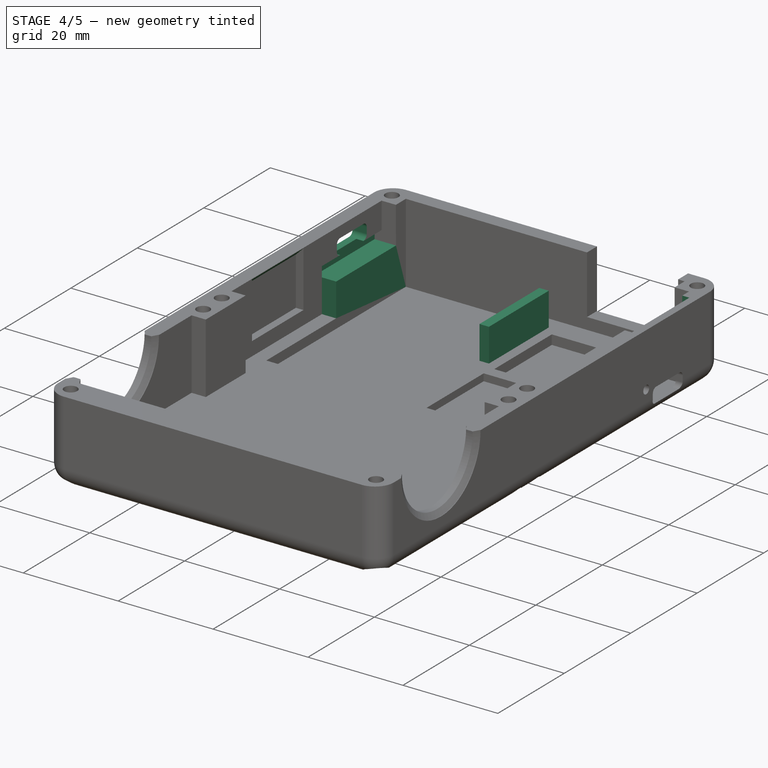
[diagram: stage 4 of 5 — iso view after this stage's code; geometry added in this stage tinted green]
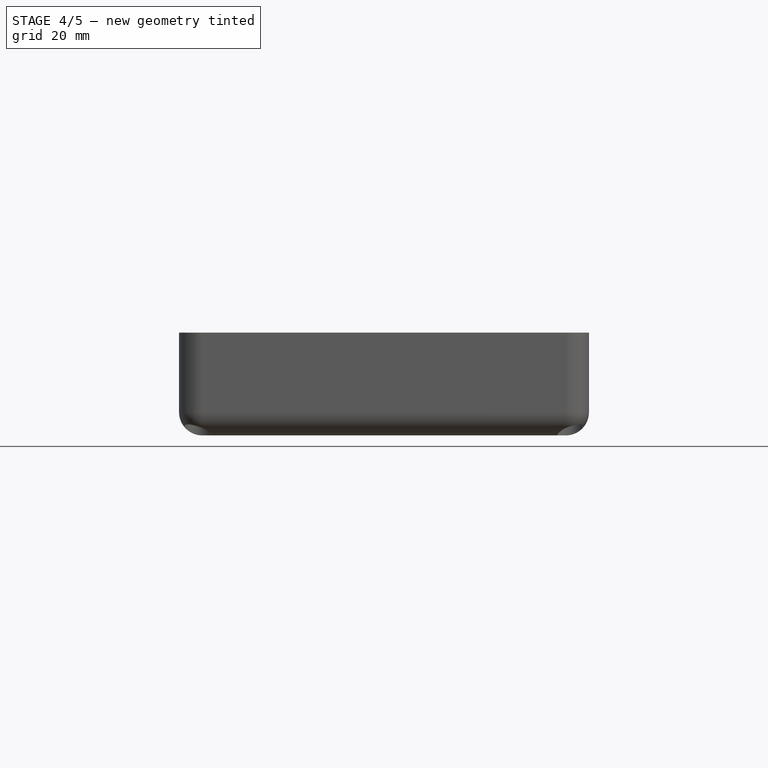
[diagram: stage 4 of 5 — front view after this stage's code; geometry added in this stage tinted green]
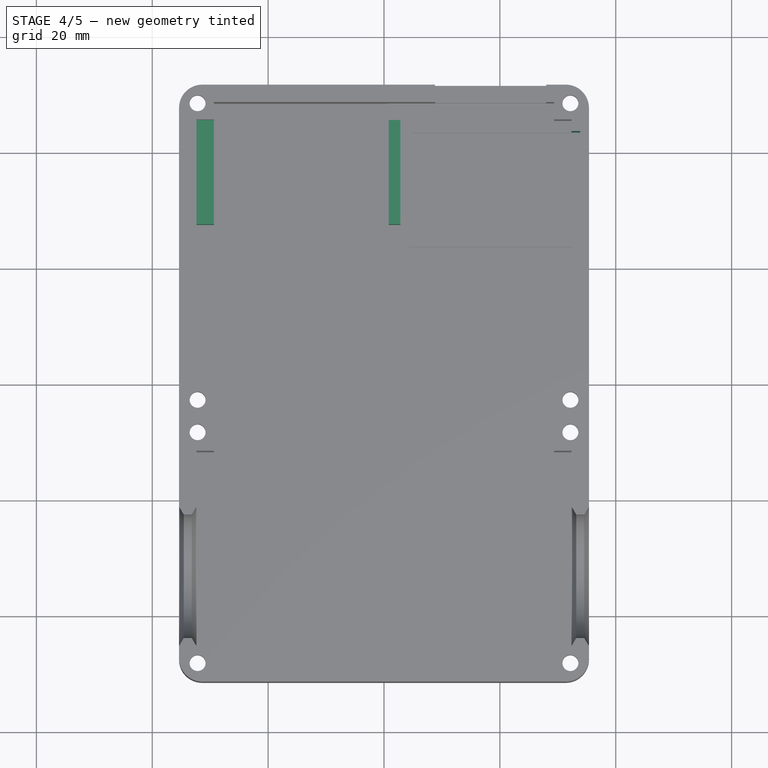
[diagram: stage 4 of 5 — top view after this stage's code; geometry added in this stage tinted green]
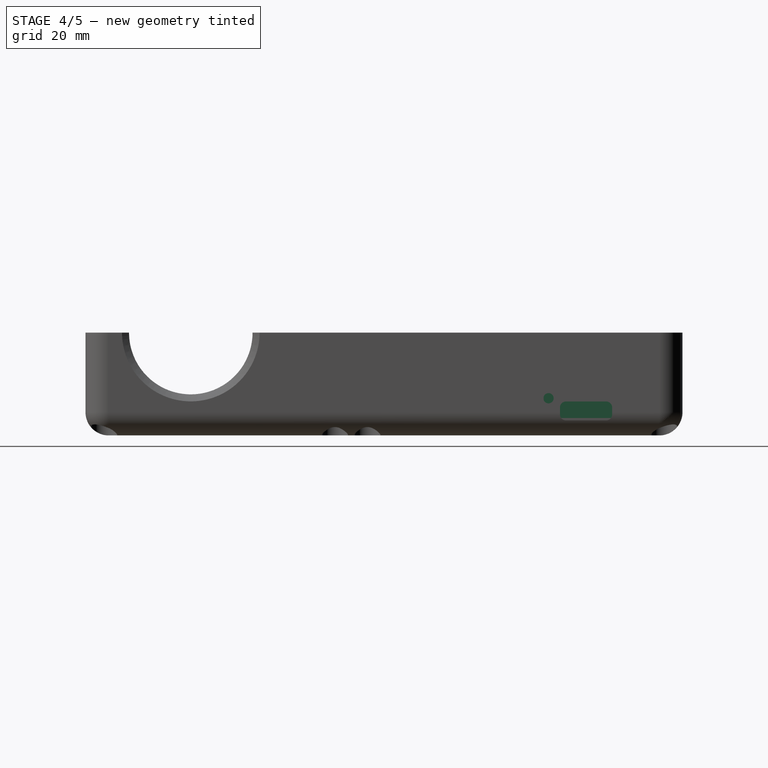
[diagram: stage 4 of 5 — right view after this stage's code; geometry added in this stage tinted green]
FEATURE [Sketcher::SketchObject] Sketch013
  ArcFitTolerance = 1e-06
  AttachmentSupport = -> [Pocket008]
  FullyConstrained = true
  MakeInternals = false
  MapMode = 5
  Placement = pos=(0,0,3) rot=(0,0,1;0rad)
  expr: Constraints[10] = <<S>>.dimension_case_width / 2 - <<S>>.dimension_wall_thickness
  sketch-geometry (8):
    g0: LineSegment StartX=-32.375 StartY=45.55 StartZ=0 EndX=-32.375 EndY=27.55 EndZ=0
    g1: LineSegment StartX=-32.375 StartY=27.55 StartZ=0 EndX=-29.375 EndY=27.55 EndZ=0
    g2: LineSegment StartX=-29.375 StartY=27.55 StartZ=0 EndX=-29.375 EndY=45.55 EndZ=0
    g3: LineSegment StartX=-29.375 StartY=45.55 StartZ=0 EndX=-32.375 EndY=45.55 EndZ=0
    g4: LineSegment StartX=0.825 StartY=45.55 StartZ=0 EndX=0.825 EndY=27.55 EndZ=0
    g5: LineSegment StartX=0.825 StartY=27.55 StartZ=0 EndX=2.825 EndY=27.55 EndZ=0
    g6: LineSegment StartX=2.825 StartY=27.55 StartZ=0 EndX=2.825 EndY=45.55 EndZ=0
    g7: LineSegment StartX=2.825 StartY=45.55 StartZ=0 EndX=0.825 EndY=45.55 EndZ=0
  constraints (24):
    c: Coincident(g0,g1)
    c: Coincident(g1,g2)
    c: Coincident(g2,g3)
    c: Coincident(g3,g0)
    c: Vertical(g0)
    c: Vertical(g2)
    c: Horizontal(g1)
    c: Horizontal(g3)
    c: Distance(g0,g2) = 3
    c: Distance(g1,g3) = 18
    c: DistanceX(g0,g-1) = 32.375
    c: DistanceY(g-1,g2) = 45.55
    c: Coincident(g4,g5)
    c: Coincident(g5,g6)
    c: Coincident(g6,g7)
    c: Coincident(g7,g4)
    c: Vertical(g4)
    c: Vertical(g6)
    c: Horizontal(g5)
    c: Horizontal(g7)
    c: Distance(g4,g6) = 2
    c: Distance(g5,g7) = 18
    c: DistanceY(g4,g2) = 0
    c: DistanceX(g1,g4) = 30.2
FEATURE [PartDesign::Pad] Pad002  label="ZeroRiser"
  BaseFeature = -> Pocket008
  Direction = (0,0,1)
  Length = 7
  Length2 = 10
  Profile = -> Sketch013
  ReferenceAxis = -> Sketch013 [N_Axis]
  Refine = true
  Suppressed = false
  Type = 0
FEATURE [Sketcher::SketchObject] Sketch014
  ArcFitTolerance = 1e-06
  AttachmentSupport = -> [Pad002]
  FullyConstrained = true
  MakeInternals = false
  MapMode = 5
  Placement = pos=(0,0,10) rot=(0,0,1;0rad)
  expr: Constraints[10] = <<S>>.dimension_case_width / 2 - <<S>>.dimension_wall_thickness
  sketch-geometry (4):
    g0: LineSegment StartX=-32.375 StartY=45.55 StartZ=0 EndX=-32.375 EndY=27.55 EndZ=0
    g1: LineSegment StartX=-32.375 StartY=27.55 StartZ=0 EndX=2.825 EndY=27.55 EndZ=0
    g2: LineSegment StartX=2.825 StartY=27.55 StartZ=0 EndX=2.825 EndY=45.55 EndZ=0
    g3: LineSegment StartX=2.825 StartY=45.55 StartZ=0 EndX=-32.375 EndY=45.55 EndZ=0
  constraints (12):
    c: Coincident(g0,g1)
    c: Coincident(g1,g2)
    c: Coincident(g2,g3)
    c: Coincident(g3,g0)
    c: Vertical(g0)
    c: Vertical(g2)
    c: Horizontal(g1)
    c: Horizontal(g3)
    c: Distance(g0,g2) = 35.2
    c: Distance(g1,g3) = 18
    c: DistanceX(g0,g-1) = 32.375
    c: DistanceY(g-1,g0) = 45.55
FEATURE [PartDesign::Pad] Pad003  label="ZeroPad"
  BaseFeature = -> Pad002
  Direction = (0,0,1)
  Length = 2.15
  Length2 = 10
  Profile = -> Sketch014
  ReferenceAxis = -> Sketch014 [N_Axis]
  Refine = true
  Suppressed = false
  Type = 0
FEATURE [Sketcher::SketchObject] Sketch015
  ArcFitTolerance = 1e-06
  AttachmentSupport = -> [Pad003]
  FullyConstrained = true
  MakeInternals = false
  MapMode = 5
  Placement = pos=(0,0,12.15) rot=(0,0,1;0rad)
  expr: Constraints[11] = <<S>>.dimension_case_width / 2 - 1.5
  sketch-geometry (4):
    g0: LineSegment StartX=-33.875 StartY=45.55 StartZ=0 EndX=-33.875 EndY=27.55 EndZ=0
    g1: LineSegment StartX=-33.875 StartY=27.55 StartZ=0 EndX=6.125 EndY=27.55 EndZ=0
    g2: LineSegment StartX=6.125 StartY=27.55 StartZ=0 EndX=6.125 EndY=45.55 EndZ=0
    g3: LineSegment StartX=6.125 StartY=45.55 StartZ=0 EndX=-33.875 EndY=45.55 EndZ=0
  constraints (12):
    c: Coincident(g0,g1)
    c: Coincident(g1,g2)
    c: Coincident(g2,g3)
    c: Coincident(g3,g0)
    c: Vertical(g0)
    c: Vertical(g2)
    c: Horizontal(g1)
    c: Horizontal(g3)
    c: Distance(g0,g2) = 40
    c: Distance(g1,g3) = 18
    c: DistanceY(g-1,g0) = 45.55
    c: DistanceX(g0,g-1) = 33.875
FEATURE [PartDesign::Pocket] Pocket009  label="ZeroPocket"
  BaseFeature = -> Pad003
  Direction = (0,0,-1)
  Length = 2.15
  Length2 = 5
  Profile = -> Sketch015
  ReferenceAxis = -> Sketch015 [N_Axis]
  Refine = true
  Suppressed = false
  Type = 0
FEATURE [Sketcher::SketchObject] Sketch016
  ArcFitTolerance = 1e-06
  AttachmentSupport = -> [Pocket009]
  FullyConstrained = true
  MakeInternals = false
  MapMode = 5
  Placement = pos=(-32.375,0,0) rot=(0.57735,0.57735,0.57735;2.0944rad)
  expr: Constraints[26] = 45.55 - 9 + 4.5
  sketch-geometry (12):
    g0: LineSegment StartX=32.05 StartY=14.4 StartZ=0 EndX=32.05 EndY=13.15 EndZ=0
    g1: LineSegment StartX=33.05 StartY=12.15 StartZ=0 EndX=40.05 EndY=12.15 EndZ=0
    g2: LineSegment StartX=41.05 StartY=13.15 StartZ=0 EndX=41.05 EndY=14.4 EndZ=0
    g3: LineSegment StartX=40.05 StartY=15.4 StartZ=0 EndX=33.05 EndY=15.4 EndZ=0
    g4: ArcOfCircle CenterX=33.05 CenterY=14.4 CenterZ=0 NormalX=0 NormalY=0 NormalZ=1 AngleXU=0 Radius=1 StartAngle=1.5708 EndAngle=3.14159
    g5: GeomPoint [constr] X=32.05 Y=15.4 Z=0
    g6: ArcOfCircle CenterX=33.05 CenterY=13.15 CenterZ=0 NormalX=0 NormalY=0 NormalZ=1 AngleXU=0 Radius=1 StartAngle=3.14159 EndAngle=4.71239
    g7: GeomPoint [constr] X=32.05 Y=12.15 Z=0
    g8: ArcOfCircle CenterX=40.05 CenterY=14.4 CenterZ=0 NormalX=0 NormalY=0 NormalZ=1 AngleXU=0 Radius=1 StartAngle=2e-16 EndAngle=1.5708
    g9: GeomPoint [constr] X=41.05 Y=15.4 Z=0
    g10: ArcOfCircle CenterX=40.05 CenterY=13.15 CenterZ=0 NormalX=0 NormalY=0 NormalZ=1 AngleXU=0 Radius=1 StartAngle=4.71239 EndAngle=6.28319
    g11: GeomPoint [constr] X=41.05 Y=12.15 Z=0
  constraints (28):
    c: Vertical(g0)
    c: Vertical(g2)
    c: Horizontal(g1)
    c: Horizontal(g3)
    c: DistanceY(g11,g9) = 3.25
    c: DistanceX(g5,g9) = 9
    c: PointOnObject(g5,g3)
    c: PointOnObject(g5,g0)
    c: Tangent(g3,g4) = -1.5708
    c: Tangent(g0,g4) = -1.5708
    c: PointOnObject(g7,g0)
    c: PointOnObject(g7,g1)
    c: Tangent(g0,g6) = -1.5708
    c: Tangent(g1,g6) = -1.5708
    c: PointOnObject(g9,g3)
    c: PointOnObject(g9,g2)
    c: Tangent(g3,g8) = -1.5708
    c: Tangent(g2,g8) = -1.5708
    c: PointOnObject(g11,g2)
    c: PointOnObject(g11,g1)
    c: Tangent(g2,g10) = -1.5708
    c: Tangent(g1,g10) = -1.5708
    c: Equal(g8,g4)
    c: Equal(g8,g6)
    c: Equal(g8,g10)
    c: Diameter(g8) = 2
    c: DistanceX(g-1,g2) = 41.05
    c: DistanceY(g-1,g1) = 12.15
FEATURE [PartDesign::Pocket] Pocket010  label="USBZero"
  BaseFeature = -> Pocket009
  Direction = (-1,0,0)
  Length = 5
  Length2 = 5
  Profile = -> Sketch016
  ReferenceAxis = -> Sketch016 [N_Axis]
  Refine = true
  Suppressed = false
  Type = 1
FEATURE [PartDesign::Chamfer] Chamfer  label="VRChamfer"
  Angle = 45
  Base = -> Pocket010 [Edge208]
  BaseFeature = -> Pocket010
  ChamferType = 0
  FlipDirection = false
  Refine = true
  Size = 1.499
  Size2 = 1
  SupportTransform = false
  Suppressed = false
  UseAllEdges = false
FEATURE [Sketcher::SketchObject] Sketch017
  ArcFitTolerance = 1e-06
  AttachmentSupport = -> [Chamfer]
  FullyConstrained = true
  MakeInternals = false
  MapMode = 5
  Placement = pos=(0,0,1) rot=(0,0,1;0rad)
  sketch-geometry (4):
    g0: LineSegment StartX=4.875 StartY=43.525 StartZ=0 EndX=4.875 EndY=26.225 EndZ=0
    g1: LineSegment StartX=4.875 StartY=26.225 StartZ=0 EndX=33.875 EndY=26.225 EndZ=0
    g2: LineSegment StartX=33.875 StartY=26.225 StartZ=0 EndX=33.875 EndY=43.525 EndZ=0
    g3: LineSegment StartX=33.875 StartY=43.525 StartZ=0 EndX=4.875 EndY=43.525 EndZ=0
  constraints (12):
    c: Coincident(g0,g1)
    c: Coincident(g1,g2)
    c: Coincident(g2,g3)
    c: Coincident(g3,g0)
    c: Vertical(g0)
    c: Vertical(g2)
    c: Horizontal(g1)
    c: Horizontal(g3)
    c: DistanceX(g3,g3) = 29
    c: DistanceY(g0,g0) = 17.3
    c: DistanceX(g-1,g2) = 33.875
    c: DistanceY(g-1,g0) = 43.525
FEATURE [PartDesign::Pocket] Pocket011  label="ChargerWallCleanPocket"
  BaseFeature = -> Chamfer
  Direction = (0,0,-1)
  Length = 5
  Length2 = 5
  Profile = -> Sketch017
  ReferenceAxis = -> Sketch017 [N_Axis]
  Refine = true
  Reversed = true
  Suppressed = false
  Type = 1
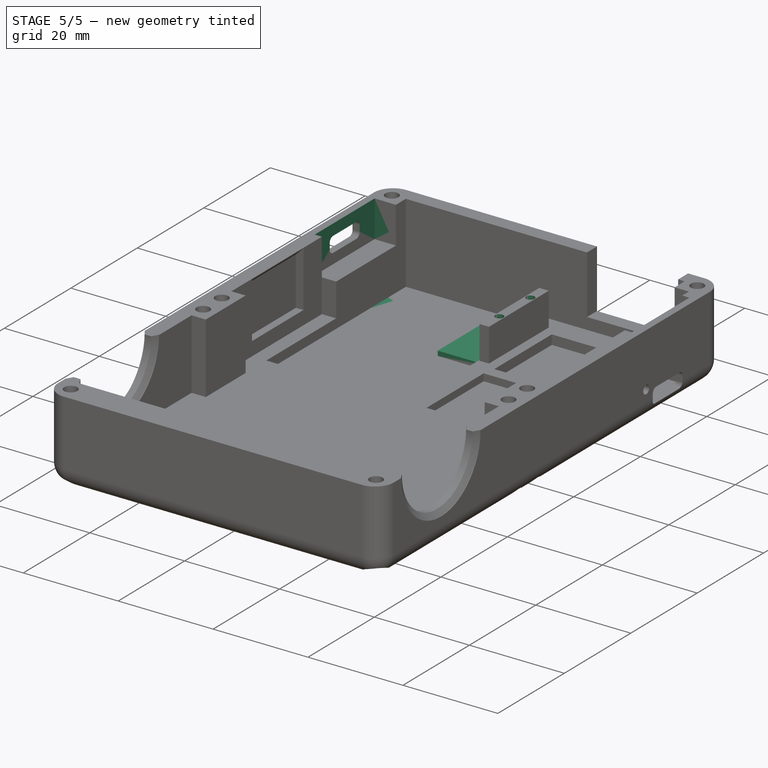
[diagram: stage 5 of 5 — iso view after this stage's code; geometry added in this stage tinted green]
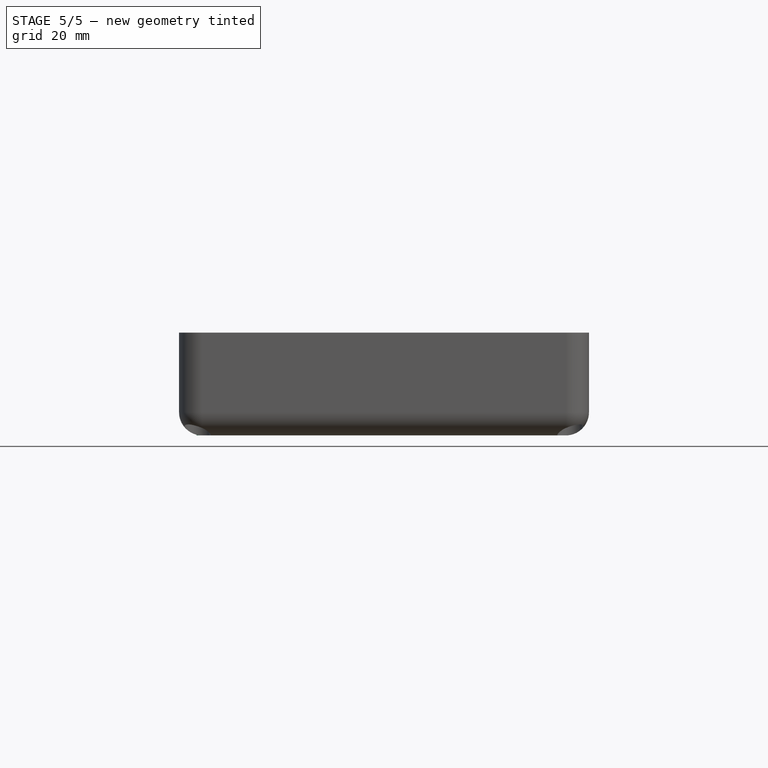
[diagram: stage 5 of 5 — front view after this stage's code; geometry added in this stage tinted green]
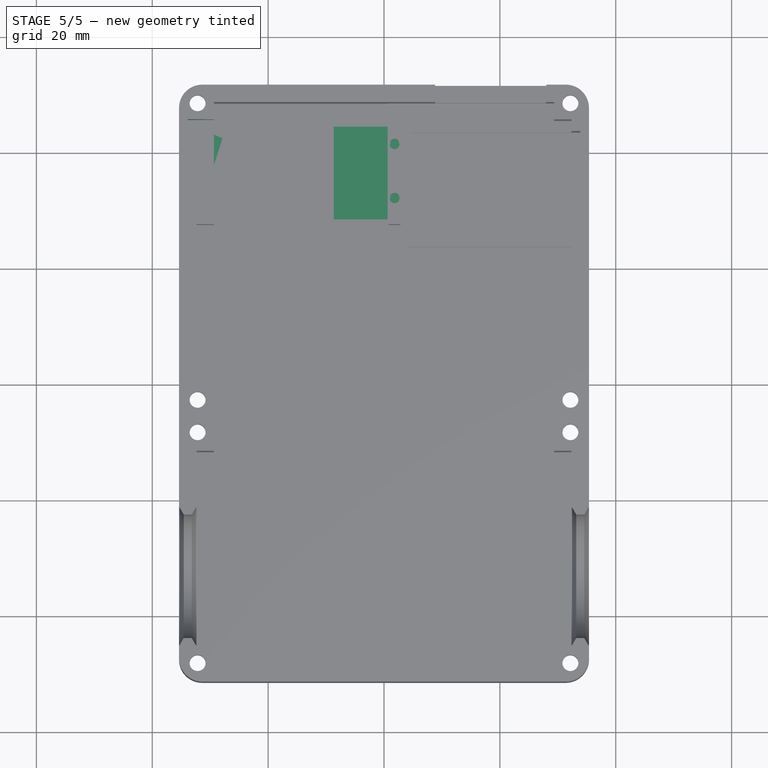
[diagram: stage 5 of 5 — top view after this stage's code; geometry added in this stage tinted green]
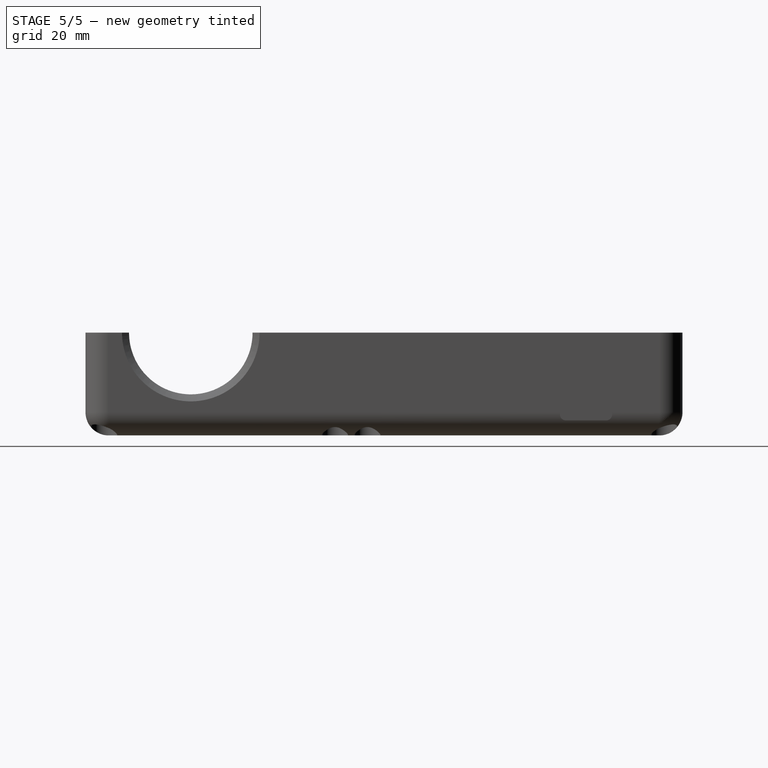
[diagram: stage 5 of 5 — right view after this stage's code; geometry added in this stage tinted green]
FEATURE [Sketcher::SketchObject] Sketch018
  ArcFitTolerance = 1e-06
  AttachmentSupport = -> [Pocket011]
  FullyConstrained = true
  MakeInternals = false
  MapMode = 5
  Placement = pos=(0,0,10) rot=(0,0,1;0rad)
  sketch-geometry (4):
    g0: LineSegment StartX=-33.88 StartY=45.55 StartZ=0 EndX=-33.88 EndY=27.55 EndZ=0
    g1: LineSegment StartX=-33.88 StartY=27.55 StartZ=0 EndX=-30.88 EndY=27.55 EndZ=0
    g2: LineSegment StartX=-30.88 StartY=27.55 StartZ=0 EndX=-30.88 EndY=45.55 EndZ=0
    g3: LineSegment StartX=-30.88 StartY=45.55 StartZ=0 EndX=-33.88 EndY=45.55 EndZ=0
  constraints (12):
    c: Coincident(g0,g1)
    c: Coincident(g1,g2)
    c: Coincident(g2,g3)
    c: Coincident(g3,g0)
    c: Vertical(g0)
    c: Vertical(g2)
    c: Horizontal(g1)
    c: Horizontal(g3)
    c: Distance(g0,g2) = 3
    c: Distance(g1,g3) = 18
    c: DistanceX(g0,g-1) = 33.88
    c: DistanceY(g-1,g2) = 45.55
FEATURE [PartDesign::Pocket] Pocket012  label="ZeroWallCleanPocket"
  BaseFeature = -> Pocket011
  Direction = (0,0,-1)
  Length = 5
  Length2 = 5
  Profile = -> Sketch018
  ReferenceAxis = -> Sketch018 [N_Axis]
  Refine = true
  Reversed = true
  Suppressed = false
  Type = 1
FEATURE [Sketcher::SketchObject] Sketch019
  ArcFitTolerance = 1e-06
  AttachmentSupport = -> [Pocket012]
  FullyConstrained = true
  MakeInternals = false
  MapMode = 5
  Placement = pos=(0,0,10) rot=(0,0,1;0rad)
  sketch-geometry (2):
    g0: Circle CenterX=1.83 CenterY=41.41 CenterZ=0 NormalX=0 NormalY=0 NormalZ=1 AngleXU=0 Radius=0.875
    g1: Circle CenterX=1.83 CenterY=32.07 CenterZ=0 NormalX=0 NormalY=0 NormalZ=1 AngleXU=0 Radius=0.875
  constraints (6):
    c: Diameter(g1) = 1.75
    c: DistanceX(g0,g1) = 0
    c: Diameter(g0) = 1.75
    c: DistanceY(g1,g0) = 9.34
    c: DistanceY(g-1,g1) = 32.07
    c: DistanceX(g-1,g1) = 1.83
FEATURE [PartDesign::Pocket] Pocket013  label="RiserEpoxyPocket"
  BaseFeature = -> Pocket012
  Direction = (0,0,-1)
  Length = 2
  Length2 = 5
  Profile = -> Sketch019
  ReferenceAxis = -> Sketch019 [N_Axis]
  Refine = true
  Suppressed = false
  Type = 0
FEATURE [Sketcher::SketchObject] Sketch020
  ArcFitTolerance = 1e-06
  AttachmentSupport = -> [XY_Plane004]
  FullyConstrained = true
  MakeInternals = false
  MapMode = 5
  sketch-geometry (6):
    g0: LineSegment StartX=-32.375 StartY=44.55 StartZ=0 EndX=-32.375 EndY=28.55 EndZ=0
    g1: LineSegment StartX=-32.375 StartY=28.55 StartZ=0 EndX=2.825 EndY=28.55 EndZ=0
    g2: LineSegment StartX=2.825 StartY=28.55 StartZ=0 EndX=2.825 EndY=44.55 EndZ=0
    g3: LineSegment StartX=2.825 StartY=44.55 StartZ=0 EndX=-32.375 EndY=44.55 EndZ=0
    g4: Circle CenterX=1.83 CenterY=41.41 CenterZ=0 NormalX=0 NormalY=0 NormalZ=1 AngleXU=0 Radius=0.875
    g5: Circle CenterX=1.83 CenterY=32.07 CenterZ=0 NormalX=0 NormalY=0 NormalZ=1 AngleXU=0 Radius=0.875
  constraints (18):
    c: Coincident(g0,g1)
    c: Coincident(g1,g2)
    c: Coincident(g2,g3)
    c: Coincident(g3,g0)
    c: Vertical(g0)
    c: Vertical(g2)
    c: Horizontal(g1)
    c: Horizontal(g3)
    c: Distance(g0,g2) = 35.2
    c: Distance(g1,g3) = 16
    c: DistanceX(g0,g-1) = 32.375
    c: DistanceY(g-1,g0) = 44.55
    c: Diameter(g5) = 1.75
    c: DistanceX(g4,g5) = 0
    c: Diameter(g4) = 1.75
    c: DistanceY(g5,g4) = 9.34
    c: DistanceY(g-1,g5) = 32.07
    c: DistanceX(g-1,g5) = 1.83
FEATURE [PartDesign::Pad] Pad004
  Direction = (0,0,1)
  Length = 2
  Length2 = 10
  Profile = -> Sketch020
  ReferenceAxis = -> Sketch020 [N_Axis]
  Refine = true
  Suppressed = false
  Type = 0
FEATURE [Sketcher::SketchObject] Sketch021
  ArcFitTolerance = 1e-06
  AttachmentSupport = -> [Pad004]
  FullyConstrained = true
  MakeInternals = false
  MapMode = 5
  Placement = pos=(0,0,2) rot=(0,0,1;0rad)
  expr: Constraints[8] = <<S>>.zero_length + <<S>>.tollerance
  sketch-geometry (4):
    g0: LineSegment StartX=-32.375 StartY=44.55 StartZ=0 EndX=-32.375 EndY=28.55 EndZ=0
    g1: LineSegment StartX=-32.375 StartY=28.55 StartZ=0 EndX=-8.675 EndY=28.55 EndZ=0
    g2: LineSegment StartX=-8.675 StartY=28.55 StartZ=0 EndX=-8.675 EndY=44.55 EndZ=0
    g3: LineSegment StartX=-8.675 StartY=44.55 StartZ=0 EndX=-32.375 EndY=44.55 EndZ=0
  constraints (12):
    c: Coincident(g0,g1)
    c: Coincident(g1,g2)
    c: Coincident(g2,g3)
    c: Coincident(g3,g0)
    c: Vertical(g0)
    c: Vertical(g2)
    c: Horizontal(g1)
    c: Horizontal(g3)
    c: Distance(g0,g2) = 23.7
    c: Distance(g1,g3) = 16
    c: DistanceX(g0,g-1) = 32.375
    c: DistanceY(g-1,g0) = 44.55
FEATURE [PartDesign::Pocket] Pocket014
  BaseFeature = -> Pad004
  Direction = (0,0,-1)
  Length = 1
  Length2 = 5
  Profile = -> Sketch021
  ReferenceAxis = -> Sketch021 [N_Axis]
  Refine = true
  Suppressed = false
  Type = 0
FEATURE [Sketcher::SketchObject] Sketch022
  ArcFitTolerance = 1e-06
  AttachmentSupport = -> [Pocket014]
  FullyConstrained = true
  MakeInternals = false
  MapMode = 5
  Placement = pos=(0,0,1) rot=(0,0,1;0rad)
  expr: Constraints[10] = 32.38 - 4.5
  expr: Constraints[8] = <<S>>.zero_length - 4.5
  sketch-geometry (4):
    g0: LineSegment StartX=-27.88 StartY=42.55 StartZ=0 EndX=-27.88 EndY=30.55 EndZ=0
    g1: LineSegment StartX=-27.88 StartY=30.55 StartZ=0 EndX=-8.88 EndY=30.55 EndZ=0
    g2: LineSegment StartX=-8.88 StartY=30.55 StartZ=0 EndX=-8.88 EndY=42.55 EndZ=0
    g3: LineSegment StartX=-8.88 StartY=42.55 StartZ=0 EndX=-27.88 EndY=42.55 EndZ=0
  constraints (12):
    c: Coincident(g0,g1)
    c: Coincident(g1,g2)
    c: Coincident(g2,g3)
    c: Coincident(g3,g0)
    c: Vertical(g0)
    c: Vertical(g2)
    c: Horizontal(g1)
    c: Horizontal(g3)
    c: Distance(g0,g2) = 19
    c: Distance(g1,g3) = 12
    c: DistanceX(g0,g-1) = 27.88
    c: DistanceY(g-1,g0) = 42.55
FEATURE [PartDesign::Pocket] Pocket015
  BaseFeature = -> Pocket014
  Direction = (0,0,-1)
  Length = 5
  Length2 = 5
  Profile = -> Sketch022
  ReferenceAxis = -> Sketch022 [N_Axis]
  Refine = true
  Suppressed = false
  Type = 1
FEATURE [PartDesign::Chamfer] Chamfer001  label="ScrewInnerChamfer"
  Angle = 45
  Base = -> Pocket013 [Edge239,Edge241,Edge166,Edge164]
  BaseFeature = -> Pocket013
  ChamferType = 0
  FlipDirection = false
  Refine = true
  Size = 0.79
  Size2 = 1
  SupportTransform = false
  Suppressed = false
  UseAllEdges = false
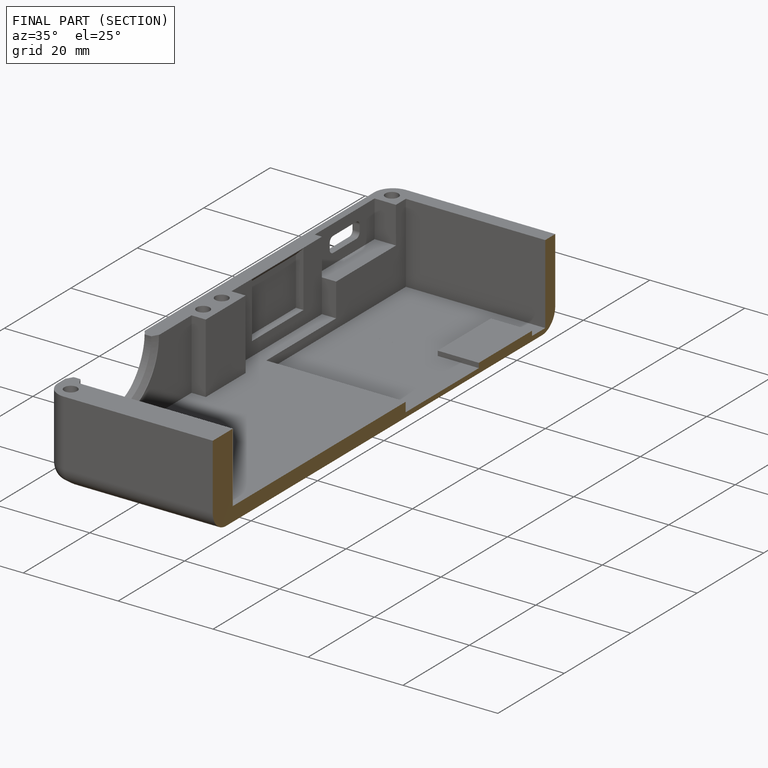
[diagram: finished part — half-section view (interior)]
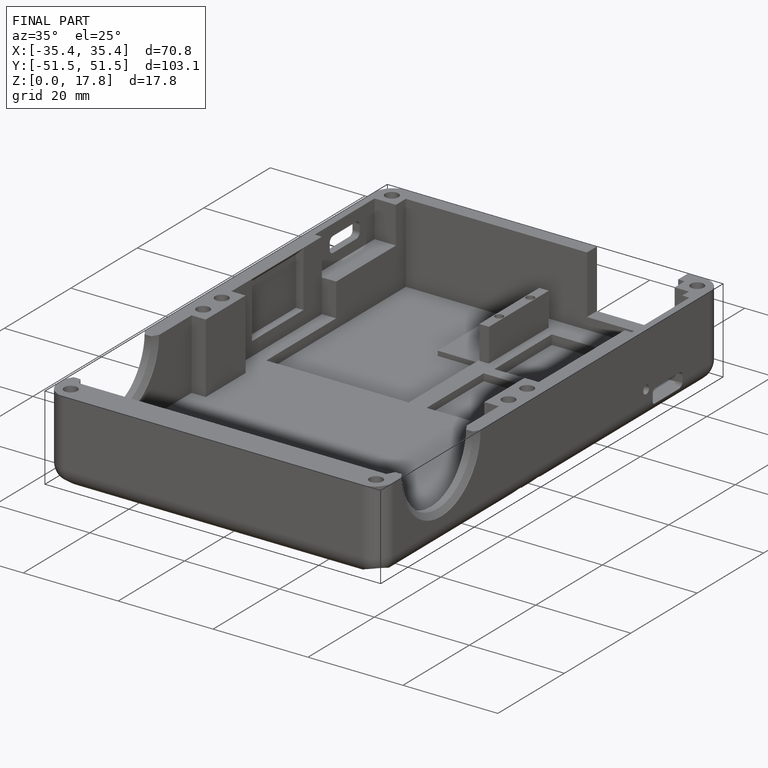
[diagram: finished part — iso view with bounding-box wireframe]
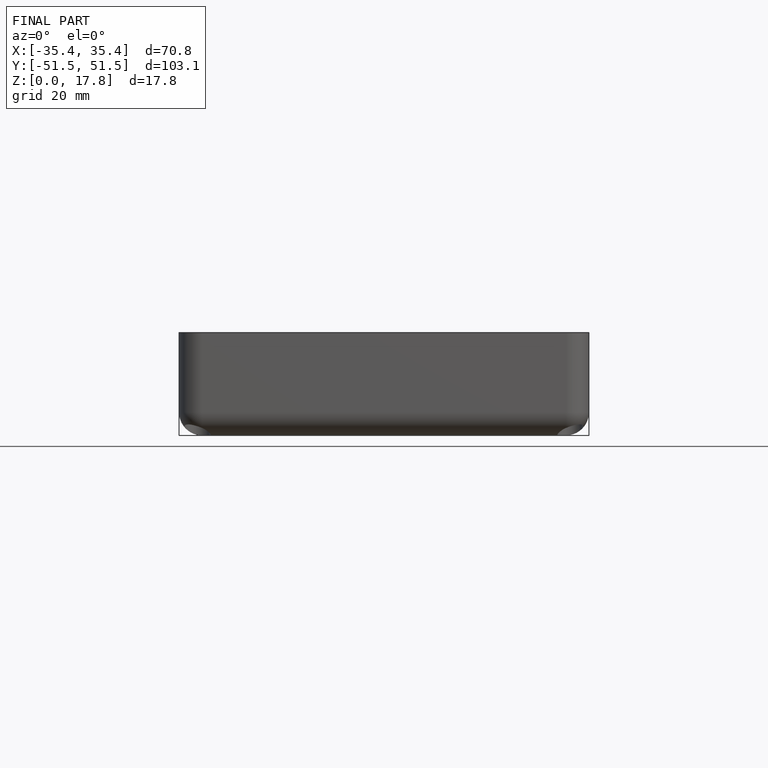
[diagram: finished part — front view with bounding-box wireframe]
